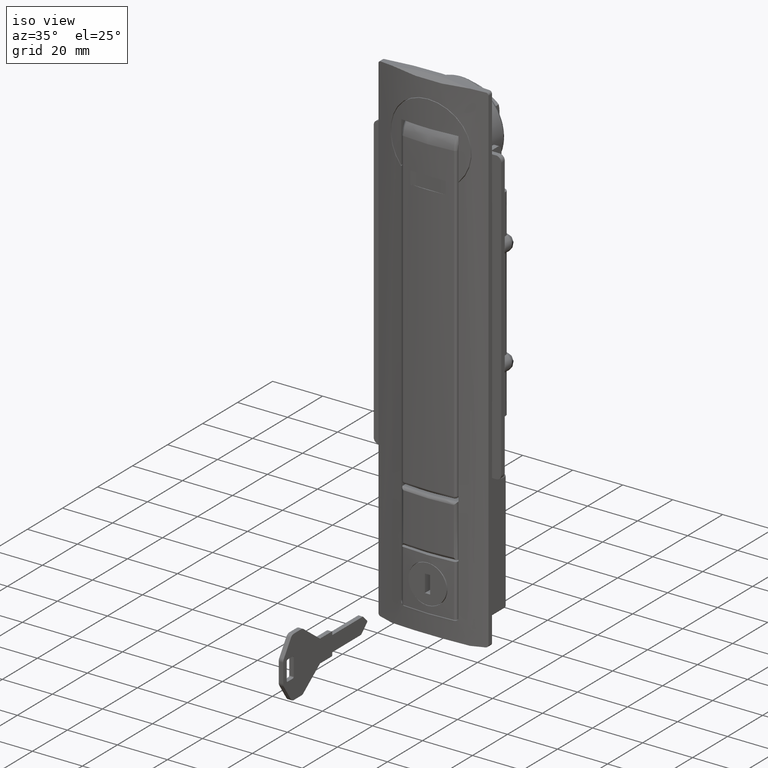
[diagram: clean part render]
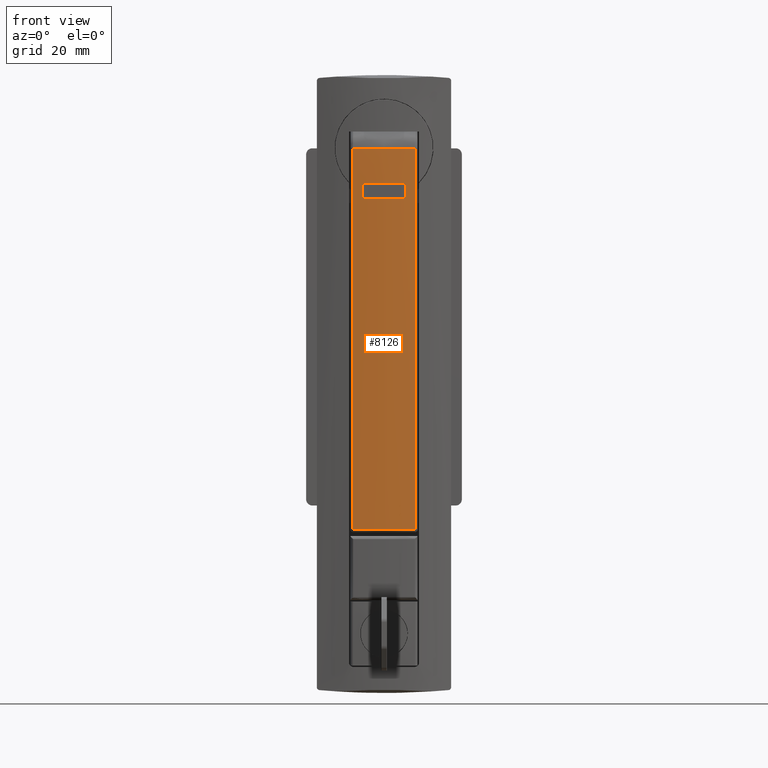
[diagram: tour spotlight — one face highlighted and labeled with its STEP entity id]
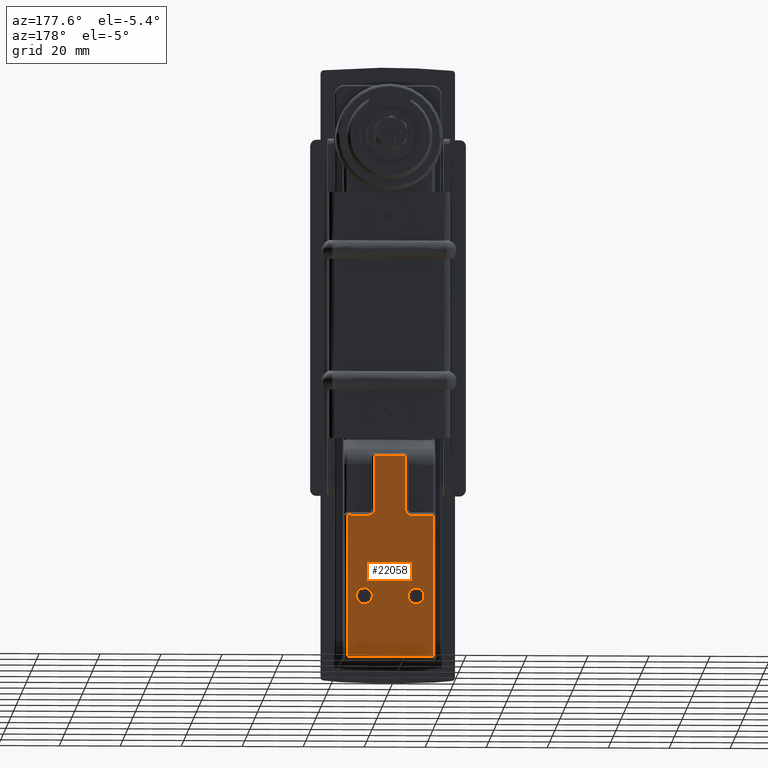
[diagram: tour spotlight — one face highlighted and labeled with its STEP entity id]
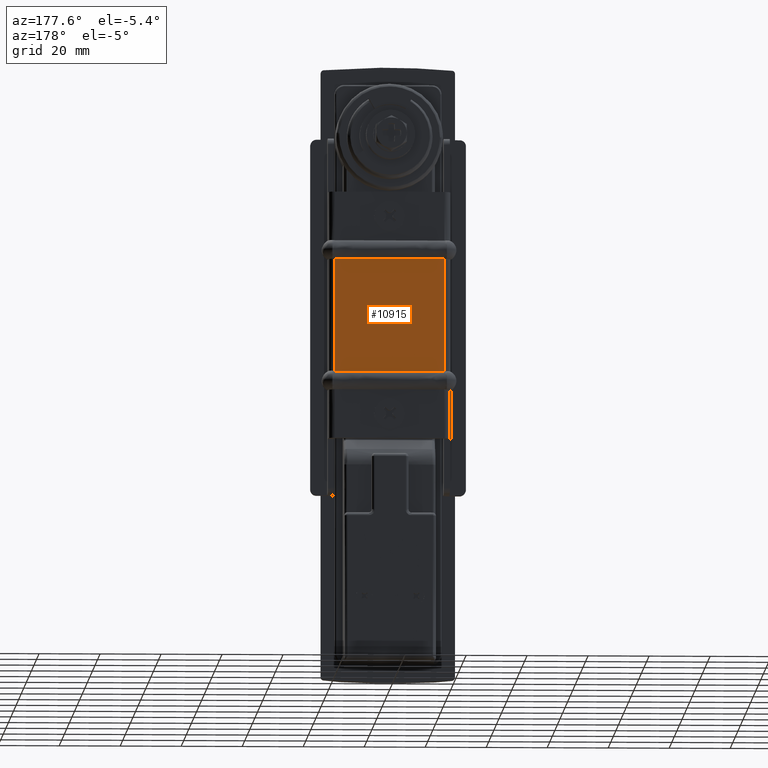
[diagram: tour spotlight — one face highlighted and labeled with its STEP entity id]
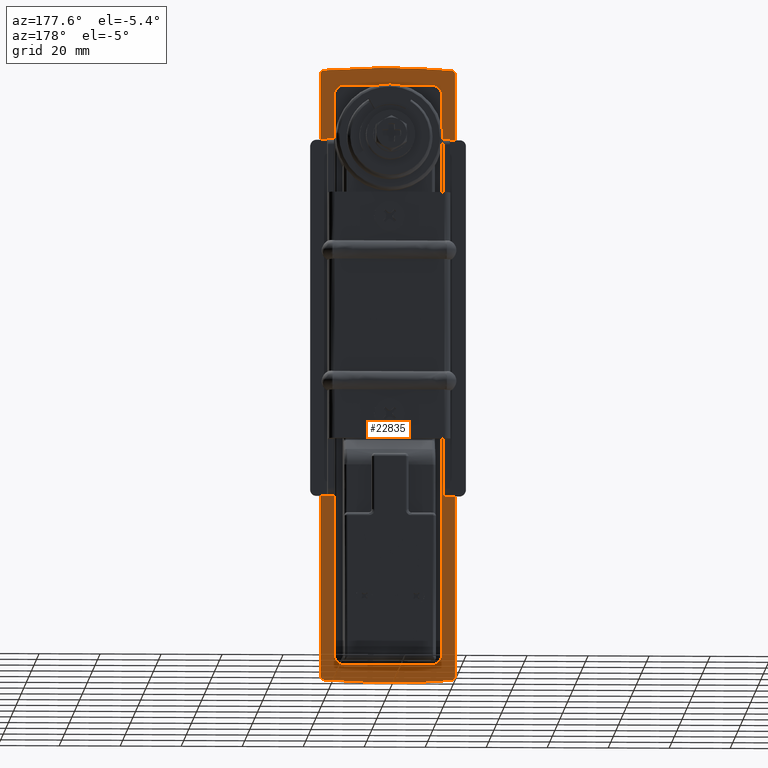
[diagram: tour spotlight — one face highlighted and labeled with its STEP entity id]
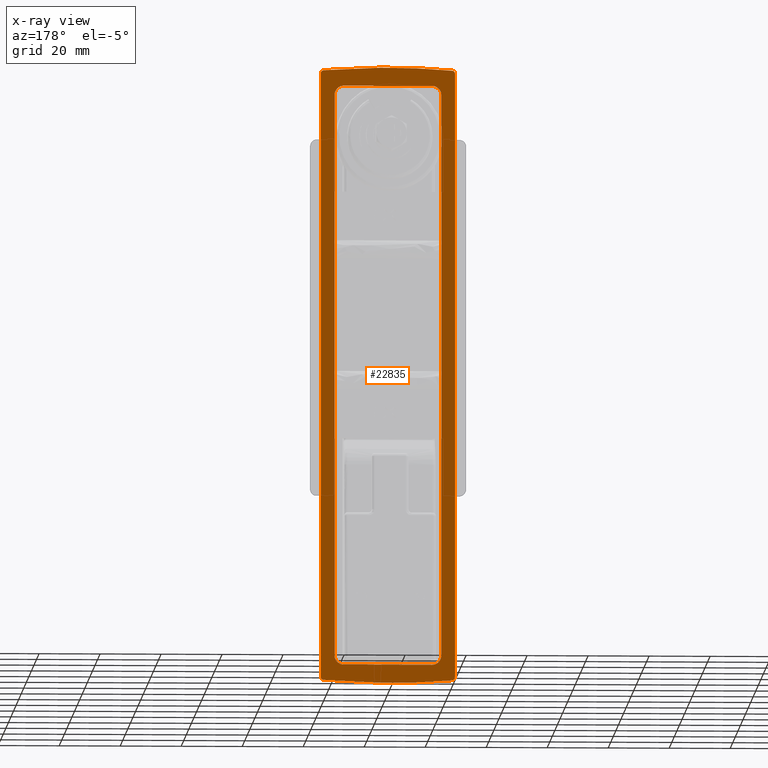
[diagram: x-ray of the same camera — body ghosted, this tour face saturated]
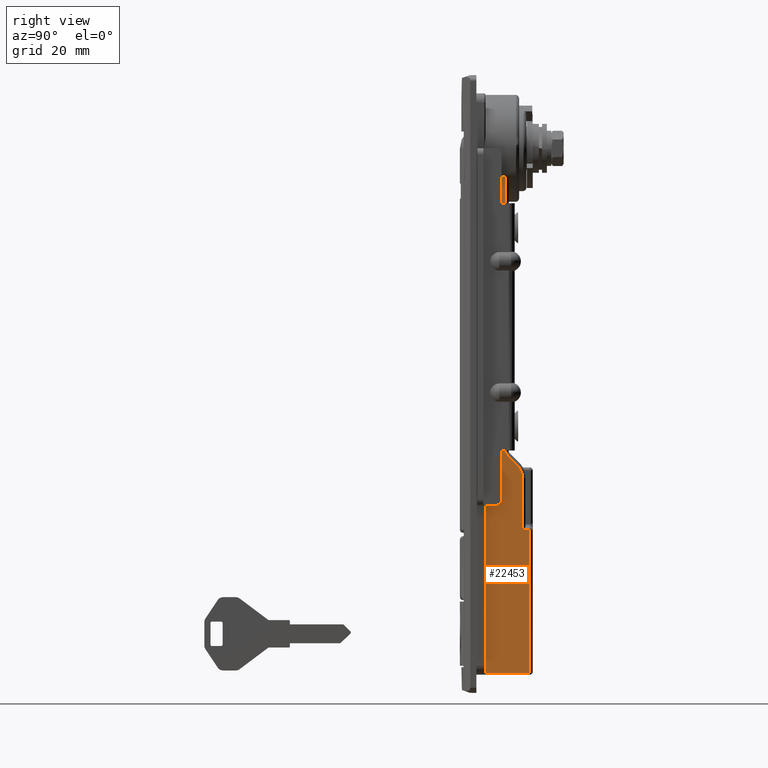
[diagram: tour spotlight — one face highlighted and labeled with its STEP entity id]
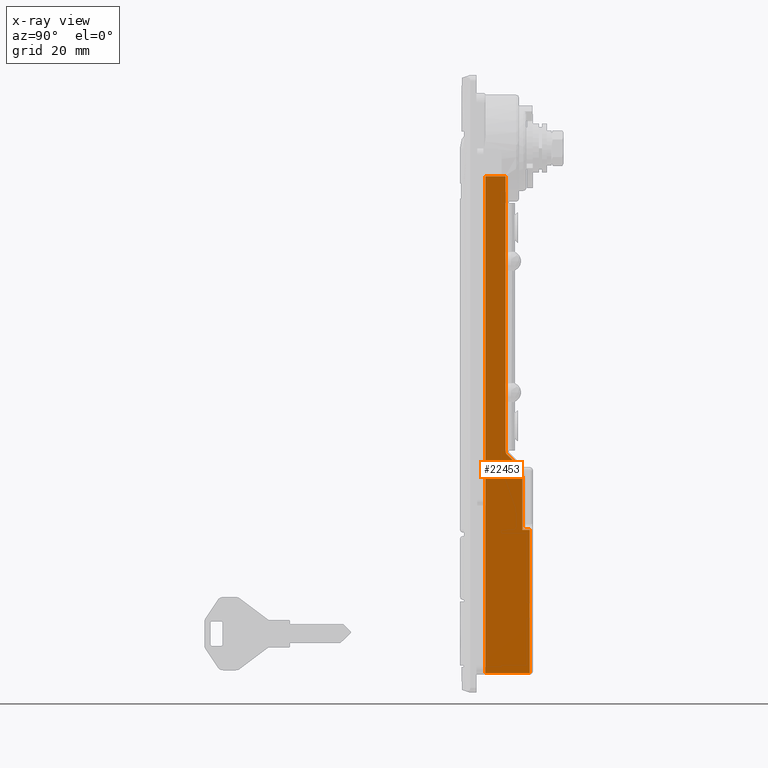
[diagram: x-ray of the same camera — body ghosted, this tour face saturated]
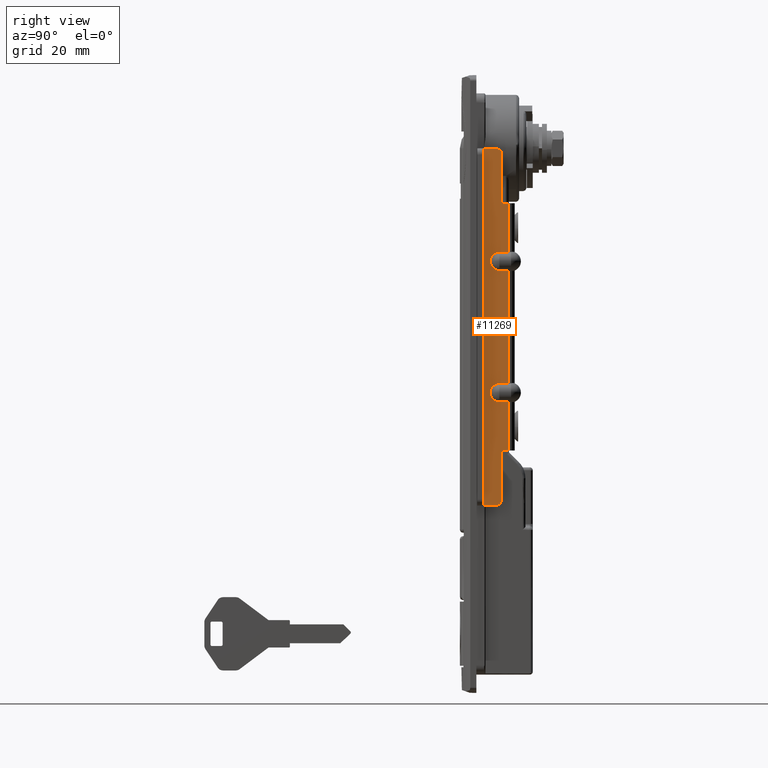
[diagram: tour spotlight — one face highlighted and labeled with its STEP entity id]
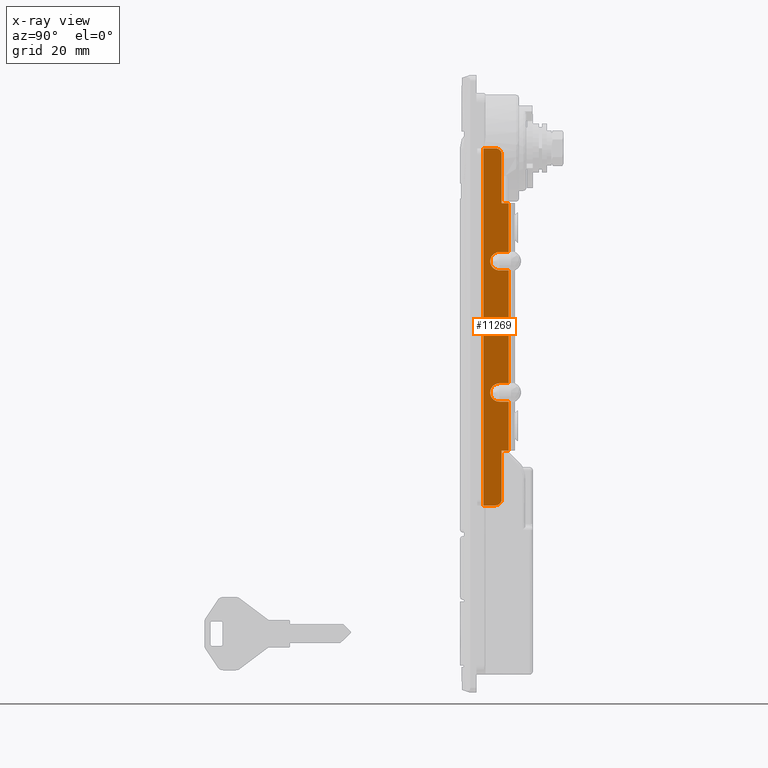
[diagram: x-ray of the same camera — body ghosted, this tour face saturated]
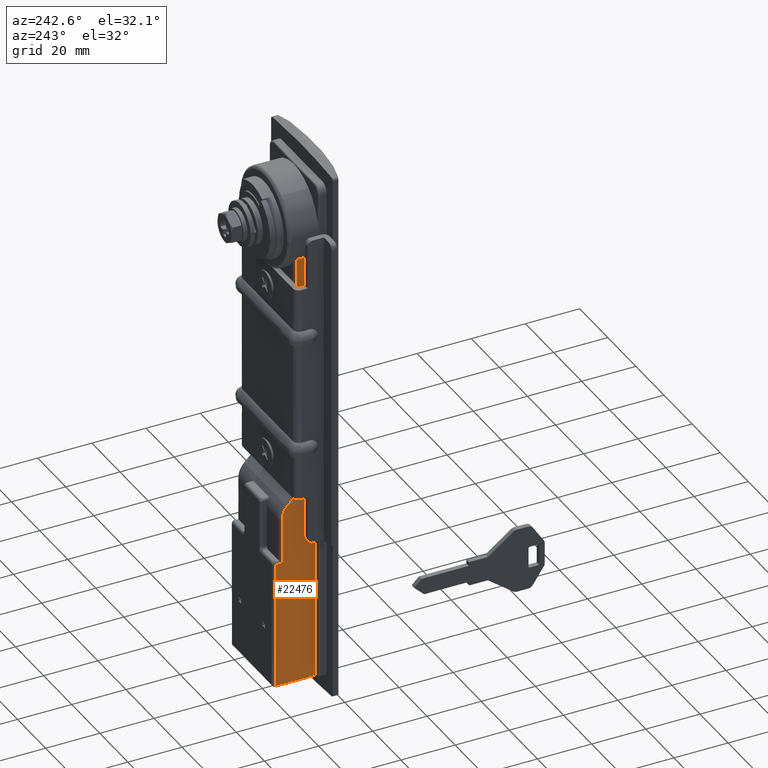
[diagram: tour spotlight — one face highlighted and labeled with its STEP entity id]
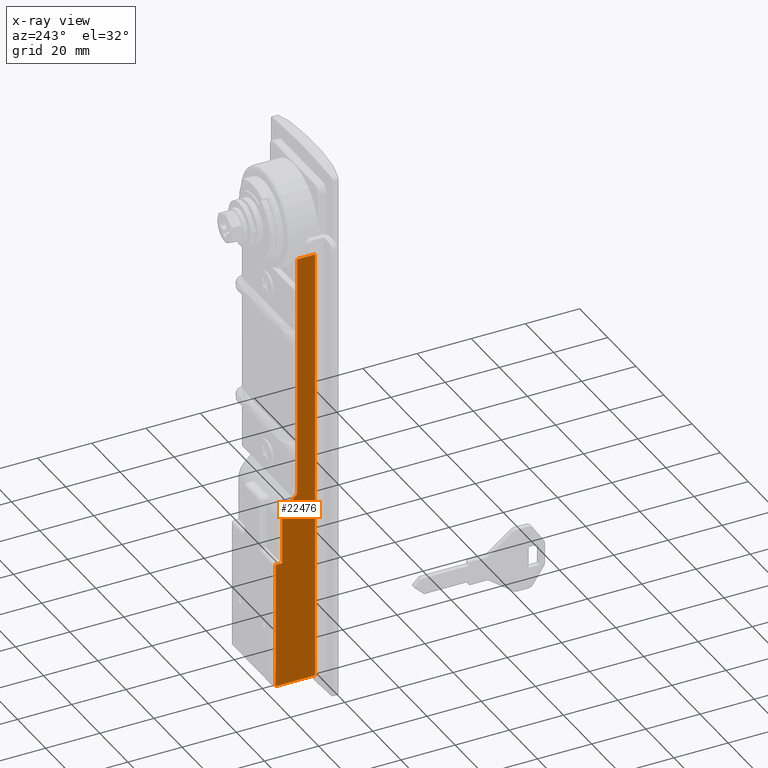
[diagram: x-ray of the same camera — body ghosted, this tour face saturated]
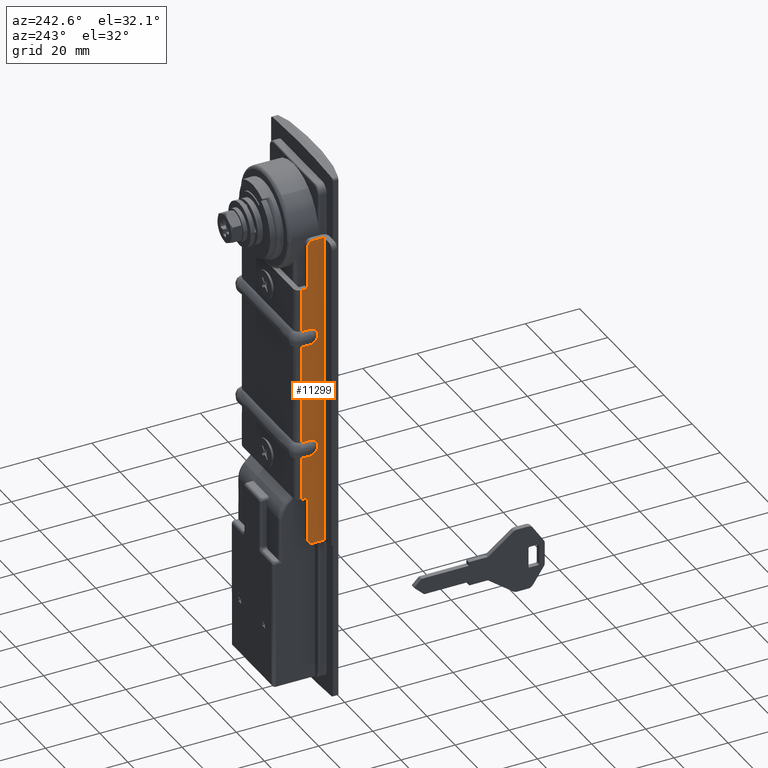
[diagram: tour spotlight — one face highlighted and labeled with its STEP entity id]
A machine part: a face-by-face anatomy tour. The part has 501 B-rep faces; the first image is the clean iso view, then the 8 largest visible faces are spotlighted one at a time (largest first), each with its STEP entity span.

Face 1 — front view, entity #8126. In plain terms, the highlighted face is a freeform B-spline surface patch.
Definition (entity closure, byte-faithful):
#5953=CARTESIAN_POINT('',(0.300000000000000,7.151922768225011,-11.500000000000000));
#5954=VERTEX_POINT('',#5953);
#5955=CARTESIAN_POINT('',(0.300000000000000,7.151922768225011,-16.500000000000000));
#5956=VERTEX_POINT('',#5955);
#5957=CARTESIAN_POINT('',(0.300000000000000,7.151922768225011,-11.500000000000000));
#5958=CARTESIAN_POINT('',(0.300000000000000,7.151922768225011,-16.500000000000000));
#5959=QUASI_UNIFORM_CURVE('',1,(#5957,#5958),.UNSPECIFIED.,.F.,.U.);
#5960=EDGE_CURVE('',#5954,#5956,#5959,.T.);
#5962=CARTESIAN_POINT('',(0.299999999999994,-7.151922768225011,-16.500000000000650));
#5963=VERTEX_POINT('',#5962);
#5969=CARTESIAN_POINT('',(0.300000000000000,-7.151922768225011,-11.500000000000000));
#5970=VERTEX_POINT('',#5969);
#5971=CARTESIAN_POINT('',(0.299999999999994,-7.151922768225011,-16.500000000000650));
#5972=CARTESIAN_POINT('',(0.300000000000000,-7.151922768225011,-11.500000000000000));
#5973=QUASI_UNIFORM_CURVE('',1,(#5971,#5972),.UNSPECIFIED.,.F.,.U.);
#5974=EDGE_CURVE('',#5963,#5970,#5973,.T.);
#5989=CARTESIAN_POINT('',(0.299999999999981,-7.151922768225015,-16.500000000000650));
#5990=CARTESIAN_POINT('',(-0.301057570859270,-4.250073E-014,-16.500000000000650));
#5991=CARTESIAN_POINT('',(0.300000000000000,7.151922768225011,-16.500000000000000));
#5999=(BOUNDED_CURVE()B_SPLINE_CURVE(2,(#5989,#5990,#5991),.UNSPECIFIED.,.F.,.U.)CURVE()GEOMETRIC_REPRESENTATION_ITEM()QUASI_UNIFORM_CURVE()RATIONAL_B_SPLINE_CURVE((1.0,0.996487119487292,1.0))REPRESENTATION_ITEM(''));
#6000=EDGE_CURVE('',#5963,#5956,#5999,.T.);
#6012=CARTESIAN_POINT('',(0.300000000000000,7.151922768225011,-11.500000000000000));
#6013=CARTESIAN_POINT('',(-0.301057570859270,2.341877E-014,-11.500000000001622));
#6014=CARTESIAN_POINT('',(0.300000000000000,-7.151922768225011,-11.500000000000000));
#6022=(BOUNDED_CURVE()B_SPLINE_CURVE(2,(#6012,#6013,#6014),.UNSPECIFIED.,.F.,.U.)CURVE()GEOMETRIC_REPRESENTATION_ITEM()QUASI_UNIFORM_CURVE()RATIONAL_B_SPLINE_CURVE((1.0,0.996487119487292,1.0))REPRESENTATION_ITEM(''));
#6023=EDGE_CURVE('',#5954,#5970,#6022,.T.);
#6469=CARTESIAN_POINT('',(0.601554892086870,-10.118483412322259,-124.912350356433610));
#6470=VERTEX_POINT('',#6469);
#6527=CARTESIAN_POINT('',(0.601554892086863,10.118483412322259,-124.912350356433610));
#6528=VERTEX_POINT('',#6527);
#6705=CARTESIAN_POINT('',(0.601554892086868,-10.118483412322281,0.044474718545276));
#6706=VERTEX_POINT('',#6705);
#6720=CARTESIAN_POINT('',(0.601554892086870,-10.118483412322259,-124.912350356433610));
#6721=CARTESIAN_POINT('',(0.601554892086868,-10.118483412322281,0.044474718545276));
#6722=QUASI_UNIFORM_CURVE('',1,(#6720,#6721),.UNSPECIFIED.,.F.,.U.);
#6723=EDGE_CURVE('',#6470,#6706,#6722,.T.);
#6755=CARTESIAN_POINT('',(0.601554892086811,10.118483412322320,-124.912350356433390));
#6756=CARTESIAN_POINT('',(-0.605822276563667,-6.938894E-014,-124.976849776038420));
#6757=CARTESIAN_POINT('',(0.601554892086839,-10.118483412322499,-124.912350356433390));
#6765=(BOUNDED_CURVE()B_SPLINE_CURVE(2,(#6755,#6756,#6757),.UNSPECIFIED.,.F.,.U.)CURVE()GEOMETRIC_REPRESENTATION_ITEM()QUASI_UNIFORM_CURVE()RATIONAL_B_SPLINE_CURVE((1.0,0.992956031757922,1.0))REPRESENTATION_ITEM(''));
#6766=EDGE_CURVE('',#6528,#6470,#6765,.T.);
#6799=CARTESIAN_POINT('',(0.601554892086878,10.118483412322281,0.044474718545278));
#6800=VERTEX_POINT('',#6799);
#6822=CARTESIAN_POINT('',(0.601554892086878,10.118483412322281,0.044474718545278));
#6823=CARTESIAN_POINT('',(0.601554892086863,10.118483412322259,-124.912350356433610));
#6824=QUASI_UNIFORM_CURVE('',1,(#6822,#6823),.UNSPECIFIED.,.F.,.U.);
#6825=EDGE_CURVE('',#6800,#6528,#6824,.T.);
#7882=CARTESIAN_POINT('',(0.601554892086859,-10.118483412322281,0.044474718545273));
#7883=CARTESIAN_POINT('',(0.401107361287307,-8.438623076961390,0.022766050458153));
#7884=CARTESIAN_POINT('',(0.250849099143142,-6.755455098727293,0.012968705069569));
#7885=CARTESIAN_POINT('',(0.050295780429653,-3.382611765777745,0.001573731742860));
#7886=CARTESIAN_POINT('',(4.214705E-009,-1.692936333584892,9.335053E-009));
#7887=CARTESIAN_POINT('',(4.214705E-009,1.692936333584892,9.335053E-009));
#7888=CARTESIAN_POINT('',(0.050295780429597,3.382611765776431,0.001573731742861));
#7889=CARTESIAN_POINT('',(0.250849099143086,6.755455098726634,0.012968705069564));
#7890=CARTESIAN_POINT('',(0.401107361287220,8.438623076960734,0.022766050458144));
#7891=CARTESIAN_POINT('',(0.601554892086878,10.118483412322281,0.044474718545278));
#7892=B_SPLINE_CURVE_WITH_KNOTS('',3,(#7882,#7883,#7884,#7885,#7886,#7887,#7888,#7889,#7890,#7891),.UNSPECIFIED.,.F.,.U.,(4,2,2,2,4),(0.0,0.250000000000000,0.500000000000000,0.750000000000000,1.0),.UNSPECIFIED.);
#7893=EDGE_CURVE('',#6706,#6800,#7892,.T.);
#8100=CARTESIAN_POINT('',(0.727025011980216,11.119681019005458,3.169198738554383));
#8101=CARTESIAN_POINT('',(0.727025011980216,11.119681019005458,-128.147328202328080));
#8102=CARTESIAN_POINT('',(-0.733457619372783,-0.001448185131213,3.169198738554382));
#8103=CARTESIAN_POINT('',(-0.733457619372783,-0.001448185131213,-128.147328202328050));
#8104=CARTESIAN_POINT('',(0.727398976263888,-11.122528272000928,3.169198738554382));
#8105=CARTESIAN_POINT('',(0.727398976263888,-11.122528272000928,-128.147328202328050));
#8113=(BOUNDED_SURFACE()B_SPLINE_SURFACE(1,2,((#8100,#8102,#8104),(#8101,#8103,#8105)),.UNSPECIFIED.,.F.,.F.,.U.)B_SPLINE_SURFACE_WITH_KNOTS((2,2),(3,3),(0.0,131.316526940882510),(0.0,22.337302046833909),.UNSPECIFIED.)GEOMETRIC_REPRESENTATION_ITEM()RATIONAL_B_SPLINE_SURFACE(((0.998260993717269,0.988288914431334,0.995294874289880),(0.998260993717269,0.988288914431334,0.995294874289880)))REPRESENTATION_ITEM('')SURFACE());
#8114=ORIENTED_EDGE('',*,*,#7893,.T.);
#8115=ORIENTED_EDGE('',*,*,#6825,.T.);
#8116=ORIENTED_EDGE('',*,*,#6766,.T.);
#8117=ORIENTED_EDGE('',*,*,#6723,.T.);
#8118=EDGE_LOOP('',(#8114,#8115,#8116,#8117));
#8119=FACE_OUTER_BOUND('',#8118,.T.);
#8120=ORIENTED_EDGE('',*,*,#5960,.F.);
#8121=ORIENTED_EDGE('',*,*,#6023,.T.);
#8122=ORIENTED_EDGE('',*,*,#5974,.F.);
#8123=ORIENTED_EDGE('',*,*,#6000,.T.);
#8124=EDGE_LOOP('',(#8120,#8121,#8122,#8123));
#8125=FACE_BOUND('',#8124,.T.);
#8126=ADVANCED_FACE('',(#8119,#8125),#8113,.T.);

Face 2 — auxiliary view, entity #22058. In plain terms, the highlighted face is a freeform B-spline surface patch.
Definition (entity closure, byte-faithful):
#14814=CARTESIAN_POINT('',(23.899999999999999,-11.091754863601601,-151.191930645799600));
#14815=VERTEX_POINT('',#14814);
#14821=CARTESIAN_POINT('',(23.899999999999999,-8.500000000000000,-154.110000000000010));
#14822=VERTEX_POINT('',#14821);
#14823=CARTESIAN_POINT('',(23.899999999999995,-11.091754863601606,-151.191930645799570));
#14824=CARTESIAN_POINT('',(23.900000000000009,-11.110000000000001,-151.345425045943810));
#14825=CARTESIAN_POINT('',(23.899999999999999,-11.109999999999999,-151.500000000000000));
#14826=CARTESIAN_POINT('',(23.899999999999991,-11.109999999999999,-154.109999999999930));
#14827=CARTESIAN_POINT('',(23.899999999999999,-8.500000000000000,-154.110000000000010));
#14835=(BOUNDED_CURVE()B_SPLINE_CURVE(2,(#14823,#14824,#14825,#14826,#14827),.UNSPECIFIED.,.F.,.U.)B_SPLINE_CURVE_WITH_KNOTS((3,2,3),(0.229562473287907,0.250000000000000,0.500000000000000),.UNSPECIFIED.)CURVE()GEOMETRIC_REPRESENTATION_ITEM()RATIONAL_B_SPLINE_CURVE((0.956026753741512,0.976055948066837,1.0,0.707106781186548,1.0))REPRESENTATION_ITEM(''));
#14836=EDGE_CURVE('',#14815,#14822,#14835,.T.);
#14838=CARTESIAN_POINT('',(23.899999999999999,-5.894868176156844,-151.659336688805890));
#14839=VERTEX_POINT('',#14838);
#14840=CARTESIAN_POINT('',(23.899999999999999,-8.500000000000000,-154.110000000000010));
#14841=CARTESIAN_POINT('',(23.899999999999991,-6.044757166546812,-154.109999999999990));
#14842=CARTESIAN_POINT('',(23.899999999999995,-5.894868176156844,-151.659336688805950));
#14850=(BOUNDED_CURVE()B_SPLINE_CURVE(2,(#14840,#14841,#14842),.UNSPECIFIED.,.F.,.U.)B_SPLINE_CURVE_WITH_KNOTS((3,3),(0.500000000000000,0.739332962159851),.UNSPECIFIED.)CURVE()GEOMETRIC_REPRESENTATION_ITEM()RATIONAL_B_SPLINE_CURVE((1.0,0.719603993379373,0.976072041497208))REPRESENTATION_ITEM(''));
#14851=EDGE_CURVE('',#14822,#14839,#14850,.T.);
#14925=CARTESIAN_POINT('',(23.899999999999999,-8.500000000000000,-148.889999999999990));
#14926=VERTEX_POINT('',#14925);
#14927=CARTESIAN_POINT('',(23.900000000000002,-5.894868176156844,-151.659336688805920));
#14928=CARTESIAN_POINT('',(23.900000000000002,-5.890000000000002,-151.579742712830980));
#14929=CARTESIAN_POINT('',(23.899999999999999,-5.890000000000002,-151.500000000000000));
#14930=CARTESIAN_POINT('',(23.899999999999991,-5.890000000000002,-148.890000000000040));
#14931=CARTESIAN_POINT('',(23.899999999999999,-8.500000000000000,-148.889999999999990));
#14939=(BOUNDED_CURVE()B_SPLINE_CURVE(2,(#14927,#14928,#14929,#14930,#14931),.UNSPECIFIED.,.F.,.U.)B_SPLINE_CURVE_WITH_KNOTS((3,2,3),(0.739332962159849,0.750000000000000,1.0),.UNSPECIFIED.)CURVE()GEOMETRIC_REPRESENTATION_ITEM()RATIONAL_B_SPLINE_CURVE((0.976072041497205,0.987502787807174,1.0,0.707106781186548,1.0))REPRESENTATION_ITEM(''));
#14940=EDGE_CURVE('',#14839,#14926,#14939,.T.);
#14942=CARTESIAN_POINT('',(23.899999999999999,-8.500000000000000,-148.889999999999990));
#14943=CARTESIAN_POINT('',(23.899999999999988,-10.818135509587320,-148.889999999999960));
#14944=CARTESIAN_POINT('',(23.900000000000002,-11.091754863601597,-151.191930645799630));
#14952=(BOUNDED_CURVE()B_SPLINE_CURVE(2,(#14942,#14943,#14944),.UNSPECIFIED.,.F.,.U.)B_SPLINE_CURVE_WITH_KNOTS((3,3),(0.0,0.229562473287907),.UNSPECIFIED.)CURVE()GEOMETRIC_REPRESENTATION_ITEM()RATIONAL_B_SPLINE_CURVE((1.0,0.731050833119711,0.956026753741512))REPRESENTATION_ITEM(''));
#14953=EDGE_CURVE('',#14926,#14815,#14952,.T.);
#15186=CARTESIAN_POINT('',(23.899999999999999,5.908245136398397,-151.191930645799600));
#15187=VERTEX_POINT('',#15186);
#15193=CARTESIAN_POINT('',(23.899999999999999,8.500000000000000,-154.110000000000010));
#15194=VERTEX_POINT('',#15193);
#15195=CARTESIAN_POINT('',(23.899999999999995,5.908245136398397,-151.191930645799600));
#15196=CARTESIAN_POINT('',(23.900000000000006,5.890000000000002,-151.345425045943900));
#15197=CARTESIAN_POINT('',(23.899999999999999,5.890000000000002,-151.500000000000000));
#15198=CARTESIAN_POINT('',(23.899999999999991,5.890000000000002,-154.109999999999930));
#15199=CARTESIAN_POINT('',(23.899999999999999,8.500000000000000,-154.110000000000010));
#15207=(BOUNDED_CURVE()B_SPLINE_CURVE(2,(#15195,#15196,#15197,#15198,#15199),.UNSPECIFIED.,.F.,.U.)B_SPLINE_CURVE_WITH_KNOTS((3,2,3),(0.229562473287909,0.250000000000000,0.500000000000000),.UNSPECIFIED.)CURVE()GEOMETRIC_REPRESENTATION_ITEM()RATIONAL_B_SPLINE_CURVE((0.956026753741516,0.976055948066839,1.0,0.707106781186548,1.0))REPRESENTATION_ITEM(''));
#15208=EDGE_CURVE('',#15187,#15194,#15207,.T.);
#15210=CARTESIAN_POINT('',(23.899999999999999,11.105131823843161,-151.659336688805890));
#15211=VERTEX_POINT('',#15210);
#15212=CARTESIAN_POINT('',(23.899999999999999,8.500000000000000,-154.110000000000010));
#15213=CARTESIAN_POINT('',(23.899999999999991,10.955242833453191,-154.109999999999990));
#15214=CARTESIAN_POINT('',(23.899999999999995,11.105131823843156,-151.659336688805950));
#15222=(BOUNDED_CURVE()B_SPLINE_CURVE(2,(#15212,#15213,#15214),.UNSPECIFIED.,.F.,.U.)B_SPLINE_CURVE_WITH_KNOTS((3,3),(0.500000000000000,0.739332962159851),.UNSPECIFIED.)CURVE()GEOMETRIC_REPRESENTATION_ITEM()RATIONAL_B_SPLINE_CURVE((1.0,0.719603993379373,0.976072041497208))REPRESENTATION_ITEM(''));
#15223=EDGE_CURVE('',#15194,#15211,#15222,.T.);
#15297=CARTESIAN_POINT('',(23.899999999999999,8.500000000000000,-148.889999999999990));
#15298=VERTEX_POINT('',#15297);
#15299=CARTESIAN_POINT('',(23.900000000000002,11.105131823843154,-151.659336688805920));
#15300=CARTESIAN_POINT('',(23.900000000000002,11.110000000000001,-151.579742712830980));
#15301=CARTESIAN_POINT('',(23.899999999999999,11.109999999999999,-151.500000000000000));
#15302=CARTESIAN_POINT('',(23.899999999999991,11.109999999999999,-148.890000000000040));
#15303=CARTESIAN_POINT('',(23.899999999999999,8.500000000000000,-148.889999999999990));
#15311=(BOUNDED_CURVE()B_SPLINE_CURVE(2,(#15299,#15300,#15301,#15302,#15303),.UNSPECIFIED.,.F.,.U.)B_SPLINE_CURVE_WITH_KNOTS((3,2,3),(0.739332962159849,0.750000000000000,1.0),.UNSPECIFIED.)CURVE()GEOMETRIC_REPRESENTATION_ITEM()RATIONAL_B_SPLINE_CURVE((0.976072041497205,0.987502787807174,1.0,0.707106781186548,1.0))REPRESENTATION_ITEM(''));
#15312=EDGE_CURVE('',#15211,#15298,#15311,.T.);
#15314=CARTESIAN_POINT('',(23.899999999999999,8.500000000000000,-148.889999999999990));
#15315=CARTESIAN_POINT('',(23.899999999999999,6.181864490412654,-148.890000000000040));
#15316=CARTESIAN_POINT('',(23.900000000000002,5.908245136398397,-151.191930645799600));
#15324=(BOUNDED_CURVE()B_SPLINE_CURVE(2,(#15314,#15315,#15316),.UNSPECIFIED.,.F.,.U.)B_SPLINE_CURVE_WITH_KNOTS((3,3),(0.0,0.229562473287909),.UNSPECIFIED.)CURVE()GEOMETRIC_REPRESENTATION_ITEM()RATIONAL_B_SPLINE_CURVE((1.0,0.731050833119708,0.956026753741516))REPRESENTATION_ITEM(''));
#15325=EDGE_CURVE('',#15298,#15187,#15324,.T.);
#17956=CARTESIAN_POINT('',(23.899999999999999,-14.0,-171.400000000000010));
#17957=VERTEX_POINT('',#17956);
#18003=CARTESIAN_POINT('',(23.899999999999999,14.0,-171.400000000000010));
#18004=VERTEX_POINT('',#18003);
#18018=CARTESIAN_POINT('',(23.899999999999999,-14.0,-171.400000000000010));
#18019=CARTESIAN_POINT('',(23.899999999999999,14.0,-171.400000000000010));
#18020=QUASI_UNIFORM_CURVE('',1,(#18018,#18019),.UNSPECIFIED.,.F.,.U.);
#18021=EDGE_CURVE('',#17957,#18004,#18020,.T.);
#18046=CARTESIAN_POINT('',(23.899999999999999,-14.0,-125.0));
#18047=VERTEX_POINT('',#18046);
#18069=CARTESIAN_POINT('',(23.899999999999999,-14.0,-125.0));
#18070=CARTESIAN_POINT('',(23.899999999999999,-14.0,-171.400000000000010));
#18071=QUASI_UNIFORM_CURVE('',1,(#18069,#18070),.UNSPECIFIED.,.F.,.U.);
#18072=EDGE_CURVE('',#18047,#17957,#18071,.T.);
#18219=CARTESIAN_POINT('',(23.899999999999999,14.0,-125.0));
#18220=VERTEX_POINT('',#18219);
#18234=CARTESIAN_POINT('',(23.899999999999999,14.0,-171.400000000000010));
#18235=CARTESIAN_POINT('',(23.899999999999999,14.0,-125.0));
#18236=QUASI_UNIFORM_CURVE('',1,(#18234,#18235),.UNSPECIFIED.,.F.,.U.);
#18237=EDGE_CURVE('',#18004,#18220,#18236,.T.);
#18262=CARTESIAN_POINT('',(23.899999999999999,-7.050000000000000,-125.0));
#18263=VERTEX_POINT('',#18262);
#18285=CARTESIAN_POINT('',(23.899999999999999,-7.050000000000000,-125.0));
#18286=CARTESIAN_POINT('',(23.899999999999999,-14.0,-125.0));
#18287=QUASI_UNIFORM_CURVE('',1,(#18285,#18286),.UNSPECIFIED.,.F.,.U.);
#18288=EDGE_CURVE('',#18263,#18047,#18287,.T.);
#18366=CARTESIAN_POINT('',(23.899999999999999,-5.050000000000000,-123.0));
#18367=VERTEX_POINT('',#18366);
#18397=CARTESIAN_POINT('',(23.899999999999999,-5.050000000000000,-123.0));
#18398=CARTESIAN_POINT('',(23.899999999999991,-5.050000000000000,-125.0));
#18399=CARTESIAN_POINT('',(23.899999999999999,-7.050000000000000,-125.0));
#18407=(BOUNDED_CURVE()B_SPLINE_CURVE(2,(#18397,#18398,#18399),.UNSPECIFIED.,.F.,.U.)CURVE()GEOMETRIC_REPRESENTATION_ITEM()QUASI_UNIFORM_CURVE()RATIONAL_B_SPLINE_CURVE((1.0,0.707106781186548,1.0))REPRESENTATION_ITEM(''));
#18408=EDGE_CURVE('',#18367,#18263,#18407,.T.);
#18429=CARTESIAN_POINT('',(23.899999999999999,7.050000000000000,-125.0));
#18430=VERTEX_POINT('',#18429);
#18444=CARTESIAN_POINT('',(23.899999999999999,14.0,-125.0));
#18445=CARTESIAN_POINT('',(23.899999999999999,7.050000000000000,-125.0));
#18446=QUASI_UNIFORM_CURVE('',1,(#18444,#18445),.UNSPECIFIED.,.F.,.U.);
#18447=EDGE_CURVE('',#18220,#18430,#18446,.T.);
#18472=CARTESIAN_POINT('',(23.899999999999999,-5.050000000000000,-105.500000000000000));
#18473=VERTEX_POINT('',#18472);
#18495=CARTESIAN_POINT('',(23.899999999999999,-5.050000000000000,-105.500000000000000));
#18496=CARTESIAN_POINT('',(23.899999999999999,-5.050000000000000,-123.0));
#18497=QUASI_UNIFORM_CURVE('',1,(#18495,#18496),.UNSPECIFIED.,.F.,.U.);
#18498=EDGE_CURVE('',#18473,#18367,#18497,.T.);
#18522=CARTESIAN_POINT('',(23.899999999999999,5.050000000000000,-123.0));
#18523=VERTEX_POINT('',#18522);
#18537=CARTESIAN_POINT('',(23.899999999999999,7.050000000000000,-125.0));
#18538=CARTESIAN_POINT('',(23.899999999999991,5.050000000000000,-125.0));
#18539=CARTESIAN_POINT('',(23.899999999999999,5.050000000000000,-123.0));
#18547=(BOUNDED_CURVE()B_SPLINE_CURVE(2,(#18537,#18538,#18539),.UNSPECIFIED.,.F.,.U.)CURVE()GEOMETRIC_REPRESENTATION_ITEM()QUASI_UNIFORM_CURVE()RATIONAL_B_SPLINE_CURVE((1.0,0.707106781186548,1.0))REPRESENTATION_ITEM(''));
#18548=EDGE_CURVE('',#18430,#18523,#18547,.T.);
#18639=CARTESIAN_POINT('',(23.899999999999999,5.050000000000000,-105.500000000000000));
#18640=VERTEX_POINT('',#18639);
#18654=CARTESIAN_POINT('',(23.899999999999999,5.050000000000000,-123.0));
#18655=CARTESIAN_POINT('',(23.899999999999999,5.050000000000000,-105.500000000000000));
#18656=QUASI_UNIFORM_CURVE('',1,(#18654,#18655),.UNSPECIFIED.,.F.,.U.);
#18657=EDGE_CURVE('',#18523,#18640,#18656,.T.);
#18703=CARTESIAN_POINT('',(23.899999999999999,5.050000000000000,-105.500000000000000));
#18704=CARTESIAN_POINT('',(23.899999999999999,-5.050000000000000,-105.500000000000000));
#18705=QUASI_UNIFORM_CURVE('',1,(#18703,#18704),.UNSPECIFIED.,.F.,.U.);
#18706=EDGE_CURVE('',#18640,#18473,#18705,.T.);
#22029=CARTESIAN_POINT('',(23.899999999999999,-15.398599945730570,-174.691698686052600));
#22030=CARTESIAN_POINT('',(23.899999999999999,15.398600696749090,-174.691698686052600));
#22031=CARTESIAN_POINT('',(23.900000000000009,-15.398599945730570,-102.208293654452600));
#22032=CARTESIAN_POINT('',(23.900000000000009,15.398600696749090,-102.208293654452600));
#22033=B_SPLINE_SURFACE_WITH_KNOTS('',1,1,((#22029,#22031),(#22030,#22032)),.UNSPECIFIED.,.F.,.F.,.U.,(2,2),(2,2),(0.0,30.797200642479670),(0.0,72.483405031599943),.UNSPECIFIED.);
#22034=ORIENTED_EDGE('',*,*,#18237,.T.);
#22035=ORIENTED_EDGE('',*,*,#18447,.T.);
#22036=ORIENTED_EDGE('',*,*,#18548,.T.);
#22037=ORIENTED_EDGE('',*,*,#18657,.T.);
#22038=ORIENTED_EDGE('',*,*,#18706,.T.);
#22039=ORIENTED_EDGE('',*,*,#18498,.T.);
#22040=ORIENTED_EDGE('',*,*,#18408,.T.);
#22041=ORIENTED_EDGE('',*,*,#18288,.T.);
#22042=ORIENTED_EDGE('',*,*,#18072,.T.);
#22043=ORIENTED_EDGE('',*,*,#18021,.T.);
#22044=EDGE_LOOP('',(#22034,#22035,#22036,#22037,#22038,#22039,#22040,#22041,#22042,#22043));
#22045=FACE_OUTER_BOUND('',#22044,.T.);
#22046=ORIENTED_EDGE('',*,*,#15223,.F.);
#22047=ORIENTED_EDGE('',*,*,#15208,.F.);
#22048=ORIENTED_EDGE('',*,*,#15325,.F.);
#22049=ORIENTED_EDGE('',*,*,#15312,.F.);
#22050=EDGE_LOOP('',(#22046,#22047,#22048,#22049));
#22051=FACE_BOUND('',#22050,.T.);
#22052=ORIENTED_EDGE('',*,*,#14851,.F.);
#22053=ORIENTED_EDGE('',*,*,#14836,.F.);
#22054=ORIENTED_EDGE('',*,*,#14953,.F.);
#22055=ORIENTED_EDGE('',*,*,#14940,.F.);
#22056=EDGE_LOOP('',(#22052,#22053,#22054,#22055));
#22057=FACE_BOUND('',#22056,.T.);
#22058=ADVANCED_FACE('',(#22045,#22051,#22057),#22033,.T.);

Face 3 — auxiliary view, entity #10915. In plain terms, the highlighted face is a freeform B-spline surface patch.
Definition (entity closure, byte-faithful):
#10191=CARTESIAN_POINT('',(18.0,18.0,-77.000000002267100));
#10192=VERTEX_POINT('',#10191);
#10204=CARTESIAN_POINT('',(18.0,-18.0,-77.000000002267100));
#10205=VERTEX_POINT('',#10204);
#10206=CARTESIAN_POINT('',(18.0,18.0,-77.000000002267100));
#10207=CARTESIAN_POINT('',(18.0,-18.0,-77.000000002267100));
#10208=QUASI_UNIFORM_CURVE('',1,(#10206,#10207),.UNSPECIFIED.,.F.,.U.);
#10209=EDGE_CURVE('',#10192,#10205,#10208,.T.);
#10723=CARTESIAN_POINT('',(18.0,-18.0,-40.0));
#10724=VERTEX_POINT('',#10723);
#10725=CARTESIAN_POINT('',(18.0,18.0,-40.0));
#10726=VERTEX_POINT('',#10725);
#10727=CARTESIAN_POINT('',(18.0,-18.0,-40.0));
#10728=CARTESIAN_POINT('',(18.0,18.0,-40.0));
#10729=QUASI_UNIFORM_CURVE('',1,(#10727,#10728),.UNSPECIFIED.,.F.,.U.);
#10730=EDGE_CURVE('',#10724,#10726,#10729,.T.);
#10896=CARTESIAN_POINT('',(18.0,-19.798199930225010,-38.151850071599938));
#10897=CARTESIAN_POINT('',(18.0,-19.798199930225010,-78.848150923084503));
#10898=CARTESIAN_POINT('',(18.0,19.798200895820258,-38.151850071599938));
#10899=CARTESIAN_POINT('',(18.0,19.798200895820258,-78.848150923084503));
#10900=B_SPLINE_SURFACE_WITH_KNOTS('',1,1,((#10896,#10898),(#10897,#10899)),.UNSPECIFIED.,.F.,.F.,.U.,(2,2),(2,2),(0.0,40.696300851484573),(0.0,39.596400826045269),.UNSPECIFIED.);
#10901=ORIENTED_EDGE('',*,*,#10209,.F.);
#10902=CARTESIAN_POINT('',(18.0,18.0,-77.000000002267100));
#10903=CARTESIAN_POINT('',(18.0,18.0,-40.0));
#10904=QUASI_UNIFORM_CURVE('',1,(#10902,#10903),.UNSPECIFIED.,.F.,.U.);
#10905=EDGE_CURVE('',#10192,#10726,#10904,.T.);
#10906=ORIENTED_EDGE('',*,*,#10905,.T.);
#10907=ORIENTED_EDGE('',*,*,#10730,.F.);
#10908=CARTESIAN_POINT('',(18.0,-18.0,-40.0));
#10909=CARTESIAN_POINT('',(18.0,-18.0,-77.000000002267100));
#10910=QUASI_UNIFORM_CURVE('',1,(#10908,#10909),.UNSPECIFIED.,.F.,.U.);
#10911=EDGE_CURVE('',#10724,#10205,#10910,.T.);
#10912=ORIENTED_EDGE('',*,*,#10911,.T.);
#10913=EDGE_LOOP('',(#10901,#10906,#10907,#10912));
#10914=FACE_OUTER_BOUND('',#10913,.T.);
#10915=ADVANCED_FACE('',(#10914),#10900,.T.);

Face 4 — auxiliary view, entity #22835. An x-ray twin of the same camera follows (body ghosted, this face saturated) — the face is partly hidden behind the body. In plain terms, the highlighted face is a freeform B-spline surface patch.
Definition (entity closure, byte-faithful):
#20278=CARTESIAN_POINT('',(5.400000000000000,-21.086956521739200,-177.481436092780510));
#20279=VERTEX_POINT('',#20278);
#20285=CARTESIAN_POINT('',(5.399999999999920,-22.0,-176.485223985181510));
#20286=VERTEX_POINT('',#20285);
#20287=CARTESIAN_POINT('',(5.400000000000000,-22.0,-176.485223985181510));
#20288=CARTESIAN_POINT('',(5.400000000000001,-22.0,-177.401739124172620));
#20289=CARTESIAN_POINT('',(5.400000000000000,-21.086956521739200,-177.481436092780600));
#20297=(BOUNDED_CURVE()B_SPLINE_CURVE(2,(#20287,#20288,#20289),.UNSPECIFIED.,.F.,.U.)CURVE()GEOMETRIC_REPRESENTATION_ITEM()QUASI_UNIFORM_CURVE()RATIONAL_B_SPLINE_CURVE((1.0,0.737209780774510,1.0))REPRESENTATION_ITEM(''));
#20298=EDGE_CURVE('',#20286,#20279,#20297,.T.);
#20351=CARTESIAN_POINT('',(5.399999999999920,22.0,-176.485223985181510));
#20352=VERTEX_POINT('',#20351);
#20358=CARTESIAN_POINT('',(5.400000000000000,21.086956521739150,-177.481436092780510));
#20359=VERTEX_POINT('',#20358);
#20360=CARTESIAN_POINT('',(5.400000000000000,21.086956521739161,-177.481436092780600));
#20361=CARTESIAN_POINT('',(5.400000000000000,22.0,-177.401739124172620));
#20362=CARTESIAN_POINT('',(5.400000000000000,22.0,-176.485223985181510));
#20370=(BOUNDED_CURVE()B_SPLINE_CURVE(2,(#20360,#20361,#20362),.UNSPECIFIED.,.F.,.U.)CURVE()GEOMETRIC_REPRESENTATION_ITEM()QUASI_UNIFORM_CURVE()RATIONAL_B_SPLINE_CURVE((1.0,0.737209780774494,1.0))REPRESENTATION_ITEM(''));
#20371=EDGE_CURVE('',#20359,#20352,#20370,.T.);
#20426=CARTESIAN_POINT('',(5.400000000000000,21.086956521739150,23.081436092780699));
#20427=VERTEX_POINT('',#20426);
#20433=CARTESIAN_POINT('',(5.399999999999920,22.0,22.085223985181649));
#20434=VERTEX_POINT('',#20433);
#20435=CARTESIAN_POINT('',(5.399999999999920,22.0,22.085223985181649));
#20436=CARTESIAN_POINT('',(5.400000000000000,22.000000000000004,23.001739124172747));
#20437=CARTESIAN_POINT('',(5.400000000000000,21.086956521739150,23.081436092780692));
#20445=(BOUNDED_CURVE()B_SPLINE_CURVE(2,(#20435,#20436,#20437),.UNSPECIFIED.,.F.,.U.)CURVE()GEOMETRIC_REPRESENTATION_ITEM()QUASI_UNIFORM_CURVE()RATIONAL_B_SPLINE_CURVE((1.0,0.737209780774491,1.0))REPRESENTATION_ITEM(''));
#20446=EDGE_CURVE('',#20434,#20427,#20445,.T.);
#20499=CARTESIAN_POINT('',(5.399999999999920,-22.0,22.085223985181649));
#20500=VERTEX_POINT('',#20499);
#20506=CARTESIAN_POINT('',(5.400000000000000,-21.086956521739200,23.081436092780699));
#20507=VERTEX_POINT('',#20506);
#20508=CARTESIAN_POINT('',(5.400000000000000,-21.086956521739200,23.081436092780692));
#20509=CARTESIAN_POINT('',(5.400000000000000,-22.000000000000004,23.001739124172712));
#20510=CARTESIAN_POINT('',(5.399999999999920,-22.0,22.085223985181649));
#20518=(BOUNDED_CURVE()B_SPLINE_CURVE(2,(#20508,#20509,#20510),.UNSPECIFIED.,.F.,.U.)CURVE()GEOMETRIC_REPRESENTATION_ITEM()QUASI_UNIFORM_CURVE()RATIONAL_B_SPLINE_CURVE((1.0,0.737209780774508,1.0))REPRESENTATION_ITEM(''));
#20519=EDGE_CURVE('',#20507,#20500,#20518,.T.);
#20553=CARTESIAN_POINT('',(5.400000000000000,-21.086956521739172,-177.481436092780710));
#20554=CARTESIAN_POINT('',(5.400000000000001,-2.829107E-014,-179.322056558249410));
#20555=CARTESIAN_POINT('',(5.400000000000000,21.086956521739051,-177.481436092780710));
#20563=(BOUNDED_CURVE()B_SPLINE_CURVE(2,(#20553,#20554,#20555),.UNSPECIFIED.,.F.,.U.)CURVE()GEOMETRIC_REPRESENTATION_ITEM()QUASI_UNIFORM_CURVE()RATIONAL_B_SPLINE_CURVE((1.0,0.996212107599096,1.0))REPRESENTATION_ITEM(''));
#20564=EDGE_CURVE('',#20279,#20359,#20563,.T.);
#20616=CARTESIAN_POINT('',(5.400000000000000,-21.086956521739221,23.081436092780692));
#20617=CARTESIAN_POINT('',(5.400000000000000,-8.740231E-014,24.922056558249505));
#20618=CARTESIAN_POINT('',(5.400000000000000,21.086956521739111,23.081436092780692));
#20626=(BOUNDED_CURVE()B_SPLINE_CURVE(2,(#20616,#20617,#20618),.UNSPECIFIED.,.F.,.U.)CURVE()GEOMETRIC_REPRESENTATION_ITEM()QUASI_UNIFORM_CURVE()RATIONAL_B_SPLINE_CURVE((1.0,0.996212107599096,1.0))REPRESENTATION_ITEM(''));
#20627=EDGE_CURVE('',#20507,#20427,#20626,.T.);
#22536=CARTESIAN_POINT('',(5.400000000000000,14.500000000000000,18.0));
#22537=VERTEX_POINT('',#22536);
#22544=CARTESIAN_POINT('',(5.400000000000000,17.500000000000000,15.0));
#22545=VERTEX_POINT('',#22544);
#22551=CARTESIAN_POINT('',(5.400000000000000,17.500000000000000,15.0));
#22552=CARTESIAN_POINT('',(5.400000000000000,17.499999999999996,18.000000000000007));
#22553=CARTESIAN_POINT('',(5.400000000000000,14.500000000000000,18.0));
#22561=(BOUNDED_CURVE()B_SPLINE_CURVE(2,(#22551,#22552,#22553),.UNSPECIFIED.,.F.,.U.)CURVE()GEOMETRIC_REPRESENTATION_ITEM()QUASI_UNIFORM_CURVE()RATIONAL_B_SPLINE_CURVE((1.0,0.707106781186548,1.0))REPRESENTATION_ITEM(''));
#22562=EDGE_CURVE('',#22545,#22537,#22561,.T.);
#22574=CARTESIAN_POINT('',(5.400000000000000,17.500000000000000,-169.400000000000010));
#22575=VERTEX_POINT('',#22574);
#22581=CARTESIAN_POINT('',(5.400000000000000,17.500000000000000,-169.400000000000010));
#22582=CARTESIAN_POINT('',(5.400000000000000,17.500000000000000,15.0));
#22583=QUASI_UNIFORM_CURVE('',1,(#22581,#22582),.UNSPECIFIED.,.F.,.U.);
#22584=EDGE_CURVE('',#22575,#22545,#22583,.T.);
#22606=CARTESIAN_POINT('',(5.400000000000000,14.500000000000000,-172.400000000000010));
#22607=VERTEX_POINT('',#22606);
#22613=CARTESIAN_POINT('',(5.400000000000000,14.500000000000000,-172.400000000000010));
#22614=CARTESIAN_POINT('',(5.400000000000000,17.499999999999996,-172.399999999999980));
#22615=CARTESIAN_POINT('',(5.400000000000000,17.500000000000000,-169.400000000000010));
#22623=(BOUNDED_CURVE()B_SPLINE_CURVE(2,(#22613,#22614,#22615),.UNSPECIFIED.,.F.,.U.)CURVE()GEOMETRIC_REPRESENTATION_ITEM()QUASI_UNIFORM_CURVE()RATIONAL_B_SPLINE_CURVE((1.0,0.707106781186548,1.0))REPRESENTATION_ITEM(''));
#22624=EDGE_CURVE('',#22607,#22575,#22623,.T.);
#22637=CARTESIAN_POINT('',(5.400000000000000,-14.500000000000000,-172.400000000000010));
#22638=VERTEX_POINT('',#22637);
#22644=CARTESIAN_POINT('',(5.400000000000000,-14.500000000000000,-172.400000000000010));
#22645=CARTESIAN_POINT('',(5.400000000000000,14.500000000000000,-172.400000000000010));
#22646=QUASI_UNIFORM_CURVE('',1,(#22644,#22645),.UNSPECIFIED.,.F.,.U.);
#22647=EDGE_CURVE('',#22638,#22607,#22646,.T.);
#22669=CARTESIAN_POINT('',(5.400000000000000,-17.500000000000000,-169.400000000000010));
#22670=VERTEX_POINT('',#22669);
#22676=CARTESIAN_POINT('',(5.400000000000000,-17.500000000000000,-169.400000000000010));
#22677=CARTESIAN_POINT('',(5.400000000000000,-17.499999999999996,-172.399999999999980));
#22678=CARTESIAN_POINT('',(5.400000000000000,-14.500000000000000,-172.400000000000010));
#22686=(BOUNDED_CURVE()B_SPLINE_CURVE(2,(#22676,#22677,#22678),.UNSPECIFIED.,.F.,.U.)CURVE()GEOMETRIC_REPRESENTATION_ITEM()QUASI_UNIFORM_CURVE()RATIONAL_B_SPLINE_CURVE((1.0,0.707106781186548,1.0))REPRESENTATION_ITEM(''));
#22687=EDGE_CURVE('',#22670,#22638,#22686,.T.);
#22700=CARTESIAN_POINT('',(5.400000000000000,-17.500000000000000,15.0));
#22701=VERTEX_POINT('',#22700);
#22707=CARTESIAN_POINT('',(5.400000000000000,-17.500000000000000,15.0));
#22708=CARTESIAN_POINT('',(5.400000000000000,-17.500000000000000,-169.400000000000010));
#22709=QUASI_UNIFORM_CURVE('',1,(#22707,#22708),.UNSPECIFIED.,.F.,.U.);
#22710=EDGE_CURVE('',#22701,#22670,#22709,.T.);
#22731=CARTESIAN_POINT('',(5.400000000000000,-14.500000000000000,18.0));
#22732=VERTEX_POINT('',#22731);
#22738=CARTESIAN_POINT('',(5.400000000000000,-14.500000000000000,18.0));
#22739=CARTESIAN_POINT('',(5.400000000000000,-17.499999999999996,18.000000000000007));
#22740=CARTESIAN_POINT('',(5.400000000000000,-17.500000000000000,15.0));
#22748=(BOUNDED_CURVE()B_SPLINE_CURVE(2,(#22738,#22739,#22740),.UNSPECIFIED.,.F.,.U.)CURVE()GEOMETRIC_REPRESENTATION_ITEM()QUASI_UNIFORM_CURVE()RATIONAL_B_SPLINE_CURVE((1.0,0.707106781186548,1.0))REPRESENTATION_ITEM(''));
#22749=EDGE_CURVE('',#22732,#22701,#22748,.T.);
#22762=CARTESIAN_POINT('',(5.400000000000000,14.500000000000000,18.0));
#22763=CARTESIAN_POINT('',(5.400000000000000,-14.500000000000000,18.0));
#22764=QUASI_UNIFORM_CURVE('',1,(#22762,#22763),.UNSPECIFIED.,.F.,.U.);
#22765=EDGE_CURVE('',#22537,#22732,#22764,.T.);
#22775=CARTESIAN_POINT('',(5.399999999999920,-22.0,-176.485223985181510));
#22776=CARTESIAN_POINT('',(5.399999999999920,-22.0,22.085223985181649));
#22777=QUASI_UNIFORM_CURVE('',1,(#22775,#22776),.UNSPECIFIED.,.F.,.U.);
#22778=EDGE_CURVE('',#20286,#20500,#22777,.T.);
#22801=CARTESIAN_POINT('',(5.399999999999920,22.0,-176.485223985181510));
#22802=CARTESIAN_POINT('',(5.399999999999920,22.0,22.085223985181649));
#22803=QUASI_UNIFORM_CURVE('',1,(#22801,#22802),.UNSPECIFIED.,.F.,.U.);
#22804=EDGE_CURVE('',#20352,#20434,#22803,.T.);
#22810=CARTESIAN_POINT('',(5.399999999999920,-24.197799914719461,-188.505392396859010));
#22811=CARTESIAN_POINT('',(5.399999999999920,24.197801094891432,-188.505392396859010));
#22812=CARTESIAN_POINT('',(5.399999999999920,-24.197799914719461,34.105379729679932));
#22813=CARTESIAN_POINT('',(5.399999999999920,24.197801094891432,34.105379729679932));
#22814=B_SPLINE_SURFACE_WITH_KNOTS('',1,1,((#22810,#22812),(#22811,#22813)),.UNSPECIFIED.,.F.,.F.,.U.,(2,2),(2,2),(0.0,48.395601009610893),(0.0,222.610772126538900),.UNSPECIFIED.);
#22815=ORIENTED_EDGE('',*,*,#20627,.F.);
#22816=ORIENTED_EDGE('',*,*,#20519,.T.);
#22817=ORIENTED_EDGE('',*,*,#22778,.F.);
#22818=ORIENTED_EDGE('',*,*,#20298,.T.);
#22819=ORIENTED_EDGE('',*,*,#20564,.T.);
#22820=ORIENTED_EDGE('',*,*,#20371,.T.);
#22821=ORIENTED_EDGE('',*,*,#22804,.T.);
#22822=ORIENTED_EDGE('',*,*,#20446,.T.);
#22823=EDGE_LOOP('',(#22815,#22816,#22817,#22818,#22819,#22820,#22821,#22822));
#22824=FACE_OUTER_BOUND('',#22823,.T.);
#22825=ORIENTED_EDGE('',*,*,#22749,.F.);
#22826=ORIENTED_EDGE('',*,*,#22765,.F.);
#22827=ORIENTED_EDGE('',*,*,#22562,.F.);
#22828=ORIENTED_EDGE('',*,*,#22584,.F.);
#22829=ORIENTED_EDGE('',*,*,#22624,.F.);
#22830=ORIENTED_EDGE('',*,*,#22647,.F.);
#22831=ORIENTED_EDGE('',*,*,#22687,.F.);
#22832=ORIENTED_EDGE('',*,*,#22710,.F.);
#22833=EDGE_LOOP('',(#22825,#22826,#22827,#22828,#22829,#22830,#22831,#22832));
#22834=FACE_BOUND('',#22833,.T.);
#22835=ADVANCED_FACE('',(#22824,#22834),#22814,.T.);

Face 5 — right view, entity #22453. An x-ray twin of the same camera follows (body ghosted, this face saturated) — the face is partly hidden behind the body. In plain terms, the highlighted face is a freeform B-spline surface patch.
Definition (entity closure, byte-faithful):
#17291=CARTESIAN_POINT('',(15.0,-15.0,-9.151502608861570));
#17292=VERTEX_POINT('',#17291);
#17345=CARTESIAN_POINT('',(15.0,-15.0,-99.257360000000006));
#17346=VERTEX_POINT('',#17345);
#17347=CARTESIAN_POINT('',(15.0,-15.0,-99.257360000000006));
#17348=CARTESIAN_POINT('',(15.0,-15.0,-9.151502608861570));
#17349=QUASI_UNIFORM_CURVE('',1,(#17347,#17348),.UNSPECIFIED.,.F.,.U.);
#17350=EDGE_CURVE('',#17346,#17292,#17349,.T.);
#17385=CARTESIAN_POINT('',(15.439339912046201,-15.0,-100.318020255606000));
#17386=VERTEX_POINT('',#17385);
#17416=CARTESIAN_POINT('',(15.439339912046281,-15.0,-100.318020255605900));
#17417=CARTESIAN_POINT('',(15.000000000000002,-15.000000000000002,-99.878680413003465));
#17418=CARTESIAN_POINT('',(15.0,-15.0,-99.257360000000006));
#17426=(BOUNDED_CURVE()B_SPLINE_CURVE(2,(#17416,#17417,#17418),.UNSPECIFIED.,.F.,.U.)CURVE()GEOMETRIC_REPRESENTATION_ITEM()QUASI_UNIFORM_CURVE()RATIONAL_B_SPLINE_CURVE((1.0,0.923879517389167,1.0))REPRESENTATION_ITEM(''));
#17427=EDGE_CURVE('',#17386,#17346,#17426,.T.);
#17446=CARTESIAN_POINT('',(18.596193714466299,-15.0,-103.474873559041400));
#17447=VERTEX_POINT('',#17446);
#17469=CARTESIAN_POINT('',(18.596193714466299,-15.0,-103.474873559041400));
#17470=CARTESIAN_POINT('',(15.439339912046201,-15.0,-100.318020255606000));
#17471=QUASI_UNIFORM_CURVE('',1,(#17469,#17470),.UNSPECIFIED.,.F.,.U.);
#17472=EDGE_CURVE('',#17447,#17386,#17471,.T.);
#17494=CARTESIAN_POINT('',(20.500000000000000,-15.0,-108.071068000000000));
#17495=VERTEX_POINT('',#17494);
#17525=CARTESIAN_POINT('',(20.500000000000000,-15.0,-108.071068000000000));
#17526=CARTESIAN_POINT('',(20.500000000000000,-15.0,-105.378679543651910));
#17527=CARTESIAN_POINT('',(18.596193714466381,-15.0,-103.474873559041300));
#17535=(BOUNDED_CURVE()B_SPLINE_CURVE(2,(#17525,#17526,#17527),.UNSPECIFIED.,.F.,.U.)CURVE()GEOMETRIC_REPRESENTATION_ITEM()QUASI_UNIFORM_CURVE()RATIONAL_B_SPLINE_CURVE((1.0,0.923879517389178,1.0))REPRESENTATION_ITEM(''));
#17536=EDGE_CURVE('',#17495,#17447,#17535,.T.);
#17557=CARTESIAN_POINT('',(20.500000000000000,-15.0,-125.0));
#17558=VERTEX_POINT('',#17557);
#17580=CARTESIAN_POINT('',(20.500000000000000,-15.0,-125.0));
#17581=CARTESIAN_POINT('',(20.500000000000000,-15.0,-108.071068000000000));
#17582=QUASI_UNIFORM_CURVE('',1,(#17580,#17581),.UNSPECIFIED.,.F.,.U.);
#17583=EDGE_CURVE('',#17558,#17495,#17582,.T.);
#17941=CARTESIAN_POINT('',(22.899999999999999,-15.0,-171.900000000000010));
#17942=VERTEX_POINT('',#17941);
#18048=CARTESIAN_POINT('',(22.899999999999999,-15.0,-125.0));
#18049=VERTEX_POINT('',#18048);
#18063=CARTESIAN_POINT('',(22.899999999999999,-15.0,-171.900000000000010));
#18064=CARTESIAN_POINT('',(22.899999999999999,-15.0,-125.0));
#18065=QUASI_UNIFORM_CURVE('',1,(#18063,#18064),.UNSPECIFIED.,.F.,.U.);
#18066=EDGE_CURVE('',#17942,#18049,#18065,.T.);
#20750=CARTESIAN_POINT('',(8.397542745884080,-15.0,-171.900000000000010));
#20751=VERTEX_POINT('',#20750);
#20779=CARTESIAN_POINT('',(8.400000000000000,-15.0,-171.849489742782990));
#20780=VERTEX_POINT('',#20779);
#20781=CARTESIAN_POINT('',(8.400000000000000,-15.0,-171.849489742782990));
#20782=CARTESIAN_POINT('',(8.400000000000004,-15.0,-171.866366342526110));
#20783=CARTESIAN_POINT('',(8.399181719569207,-15.0,-171.883203134058590));
#20784=CARTESIAN_POINT('',(8.397542745884080,-15.0,-171.900000000000010));
#20785=QUASI_UNIFORM_CURVE('',3,(#20781,#20782,#20783,#20784),.UNSPECIFIED.,.F.,.U.);
#20786=EDGE_CURVE('',#20780,#20751,#20785,.T.);
#21276=CARTESIAN_POINT('',(8.400000000000000,-15.0,-9.151502608861570));
#21277=VERTEX_POINT('',#21276);
#21278=CARTESIAN_POINT('',(15.0,-15.0,-9.151502608861570));
#21279=CARTESIAN_POINT('',(8.400000000000000,-15.0,-9.151502608861570));
#21280=QUASI_UNIFORM_CURVE('',1,(#21278,#21279),.UNSPECIFIED.,.F.,.U.);
#21281=EDGE_CURVE('',#17292,#21277,#21280,.T.);
#21467=CARTESIAN_POINT('',(8.397542745884080,-15.0,-171.900000000000010));
#21468=CARTESIAN_POINT('',(22.899999999999999,-15.0,-171.900000000000010));
#21469=QUASI_UNIFORM_CURVE('',1,(#21467,#21468),.UNSPECIFIED.,.F.,.U.);
#21470=EDGE_CURVE('',#20751,#17942,#21469,.T.);
#22277=CARTESIAN_POINT('',(22.899999999999999,-15.0,-125.0));
#22278=CARTESIAN_POINT('',(20.500000000000000,-15.0,-125.0));
#22279=QUASI_UNIFORM_CURVE('',1,(#22277,#22278),.UNSPECIFIED.,.F.,.U.);
#22280=EDGE_CURVE('',#18049,#17558,#22279,.T.);
#22431=CARTESIAN_POINT('',(7.673145222101221,-15.0,-180.029281018183500));
#22432=CARTESIAN_POINT('',(23.624397005134568,-15.0,-180.029281018183500));
#22433=CARTESIAN_POINT('',(7.673145222101221,-15.0,-1.022211405083478));
#22434=CARTESIAN_POINT('',(23.624397005134568,-15.0,-1.022211405083478));
#22435=B_SPLINE_SURFACE_WITH_KNOTS('',1,1,((#22431,#22433),(#22432,#22434)),.UNSPECIFIED.,.F.,.F.,.U.,(2,2),(2,2),(0.0,15.951251783033340),(0.0,179.007069613099990),.UNSPECIFIED.);
#22436=ORIENTED_EDGE('',*,*,#17427,.T.);
#22437=ORIENTED_EDGE('',*,*,#17350,.T.);
#22438=ORIENTED_EDGE('',*,*,#21281,.T.);
#22439=CARTESIAN_POINT('',(8.400000000000000,-15.0,-9.151502608861570));
#22440=CARTESIAN_POINT('',(8.400000000000000,-15.0,-171.849489742782990));
#22441=QUASI_UNIFORM_CURVE('',1,(#22439,#22440),.UNSPECIFIED.,.F.,.U.);
#22442=EDGE_CURVE('',#21277,#20780,#22441,.T.);
#22443=ORIENTED_EDGE('',*,*,#22442,.T.);
#22444=ORIENTED_EDGE('',*,*,#20786,.T.);
#22445=ORIENTED_EDGE('',*,*,#21470,.T.);
#22446=ORIENTED_EDGE('',*,*,#18066,.T.);
#22447=ORIENTED_EDGE('',*,*,#22280,.T.);
#22448=ORIENTED_EDGE('',*,*,#17583,.T.);
#22449=ORIENTED_EDGE('',*,*,#17536,.T.);
#22450=ORIENTED_EDGE('',*,*,#17472,.T.);
#22451=EDGE_LOOP('',(#22436,#22437,#22438,#22443,#22444,#22445,#22446,#22447,#22448,#22449,#22450));
#22452=FACE_OUTER_BOUND('',#22451,.T.);
#22453=ADVANCED_FACE('',(#22452),#22435,.T.);

Face 6 — right view, entity #11269. An x-ray twin of the same camera follows (body ghosted, this face saturated) — the face is partly hidden behind the body. In plain terms, the highlighted face is a freeform B-spline surface patch.
Definition (entity closure, byte-faithful):
#8993=CARTESIAN_POINT('',(11.699999999999999,-20.0,0.0));
#8994=VERTEX_POINT('',#8993);
#9000=CARTESIAN_POINT('',(13.699999999999999,-20.0,-2.0));
#9001=VERTEX_POINT('',#9000);
#9002=CARTESIAN_POINT('',(13.699999999999999,-20.0,-2.0));
#9003=CARTESIAN_POINT('',(13.700000000000003,-19.999999999999545,0.0));
#9004=CARTESIAN_POINT('',(11.699999999999999,-20.0,0.0));
#9012=(BOUNDED_CURVE()B_SPLINE_CURVE(2,(#9002,#9003,#9004),.UNSPECIFIED.,.F.,.U.)CURVE()GEOMETRIC_REPRESENTATION_ITEM()QUASI_UNIFORM_CURVE()RATIONAL_B_SPLINE_CURVE((1.0,0.707106781186548,1.0))REPRESENTATION_ITEM(''));
#9013=EDGE_CURVE('',#9001,#8994,#9012,.T.);
#9180=CARTESIAN_POINT('',(13.699999999999999,-20.0,-115.0));
#9181=VERTEX_POINT('',#9180);
#9187=CARTESIAN_POINT('',(11.699999999999999,-20.0,-117.0));
#9188=VERTEX_POINT('',#9187);
#9189=CARTESIAN_POINT('',(11.699999999999999,-20.0,-117.0));
#9190=CARTESIAN_POINT('',(13.700000000000003,-19.999999999999996,-116.999999999999990));
#9191=CARTESIAN_POINT('',(13.699999999999999,-20.0,-115.0));
#9199=(BOUNDED_CURVE()B_SPLINE_CURVE(2,(#9189,#9190,#9191),.UNSPECIFIED.,.F.,.U.)CURVE()GEOMETRIC_REPRESENTATION_ITEM()QUASI_UNIFORM_CURVE()RATIONAL_B_SPLINE_CURVE((1.0,0.707106781186548,1.0))REPRESENTATION_ITEM(''));
#9200=EDGE_CURVE('',#9188,#9181,#9199,.T.);
#9467=CARTESIAN_POINT('',(13.699999999999999,-19.999999999999549,-18.0));
#9468=VERTEX_POINT('',#9467);
#9469=CARTESIAN_POINT('',(13.699999999999999,-19.999999999999549,-18.0));
#9470=CARTESIAN_POINT('',(13.699999999999999,-20.0,-2.0));
#9471=QUASI_UNIFORM_CURVE('',1,(#9469,#9470),.UNSPECIFIED.,.F.,.U.);
#9472=EDGE_CURVE('',#9468,#9001,#9471,.T.);
#9516=CARTESIAN_POINT('',(16.0,-20.0,-18.0));
#9517=VERTEX_POINT('',#9516);
#9518=CARTESIAN_POINT('',(16.0,-20.0,-18.0));
#9519=CARTESIAN_POINT('',(13.699999999999999,-19.999999999999549,-18.0));
#9520=QUASI_UNIFORM_CURVE('',1,(#9518,#9519),.UNSPECIFIED.,.F.,.U.);
#9521=EDGE_CURVE('',#9517,#9468,#9520,.T.);
#9593=CARTESIAN_POINT('',(13.699999999999999,-19.999999999999549,-99.0));
#9594=VERTEX_POINT('',#9593);
#9595=CARTESIAN_POINT('',(13.699999999999999,-19.999999999999549,-99.0));
#9596=CARTESIAN_POINT('',(13.699999999999999,-20.0,-115.0));
#9597=QUASI_UNIFORM_CURVE('',1,(#9595,#9596),.UNSPECIFIED.,.F.,.U.);
#9598=EDGE_CURVE('',#9594,#9181,#9597,.T.);
#9652=CARTESIAN_POINT('',(16.0,-20.0,-99.0));
#9653=VERTEX_POINT('',#9652);
#9667=CARTESIAN_POINT('',(16.0,-20.0,-99.0));
#9668=CARTESIAN_POINT('',(13.699999999999999,-19.999999999999549,-99.0));
#9669=QUASI_UNIFORM_CURVE('',1,(#9667,#9668),.UNSPECIFIED.,.F.,.U.);
#9670=EDGE_CURVE('',#9653,#9594,#9669,.T.);
#9908=CARTESIAN_POINT('',(12.949999999999999,-20.0,-83.000000002267200));
#9909=VERTEX_POINT('',#9908);
#9910=CARTESIAN_POINT('',(12.949999999999999,-20.0,-77.000000002267100));
#9911=VERTEX_POINT('',#9910);
#9912=CARTESIAN_POINT('',(12.949999999999999,-20.0,-83.000000002267200));
#9913=CARTESIAN_POINT('',(9.950000000000001,-19.999999999999996,-83.000000002267200));
#9914=CARTESIAN_POINT('',(9.950000000000001,-20.0,-80.000000002267200));
#9915=CARTESIAN_POINT('',(9.950000000000001,-19.999999999999996,-77.000000002267200));
#9916=CARTESIAN_POINT('',(12.949999999999999,-20.0,-77.000000002267200));
#9924=(BOUNDED_CURVE()B_SPLINE_CURVE(2,(#9912,#9913,#9914,#9915,#9916),.UNSPECIFIED.,.F.,.U.)B_SPLINE_CURVE_WITH_KNOTS((3,2,3),(0.0,0.500000000000000,1.0),.UNSPECIFIED.)CURVE()GEOMETRIC_REPRESENTATION_ITEM()RATIONAL_B_SPLINE_CURVE((1.0,0.707106781186548,1.0,0.707106781186548,1.0))REPRESENTATION_ITEM(''));
#9925=EDGE_CURVE('',#9909,#9911,#9924,.T.);
#10065=CARTESIAN_POINT('',(16.0,-20.0,-83.000000002267200));
#10066=VERTEX_POINT('',#10065);
#10067=CARTESIAN_POINT('',(12.949999999999999,-20.0,-83.000000002267200));
#10068=CARTESIAN_POINT('',(16.0,-20.0,-83.000000002267200));
#10069=QUASI_UNIFORM_CURVE('',1,(#10067,#10068),.UNSPECIFIED.,.F.,.U.);
#10070=EDGE_CURVE('',#9909,#10066,#10069,.T.);
#10087=CARTESIAN_POINT('',(16.0,-20.0,-77.000000002267100));
#10088=VERTEX_POINT('',#10087);
#10101=CARTESIAN_POINT('',(16.0,-20.0,-77.000000002267100));
#10102=CARTESIAN_POINT('',(12.949999999999999,-20.0,-77.000000002267100));
#10103=QUASI_UNIFORM_CURVE('',1,(#10101,#10102),.UNSPECIFIED.,.F.,.U.);
#10104=EDGE_CURVE('',#10088,#9911,#10103,.T.);
#10443=CARTESIAN_POINT('',(12.949999999999999,-20.0,-40.0));
#10444=VERTEX_POINT('',#10443);
#10445=CARTESIAN_POINT('',(12.949999999999999,-20.0,-34.0));
#10446=VERTEX_POINT('',#10445);
#10447=CARTESIAN_POINT('',(12.949999999999999,-20.0,-40.0));
#10448=CARTESIAN_POINT('',(9.950000000000001,-19.999999999999996,-39.999999999999993));
#10449=CARTESIAN_POINT('',(9.950000000000001,-20.0,-37.0));
#10450=CARTESIAN_POINT('',(9.950000000000001,-19.999999999999996,-33.999999999999993));
#10451=CARTESIAN_POINT('',(12.949999999999999,-20.0,-33.999999999999993));
#10459=(BOUNDED_CURVE()B_SPLINE_CURVE(2,(#10447,#10448,#10449,#10450,#10451),.UNSPECIFIED.,.F.,.U.)B_SPLINE_CURVE_WITH_KNOTS((3,2,3),(0.0,0.500000000000000,1.0),.UNSPECIFIED.)CURVE()GEOMETRIC_REPRESENTATION_ITEM()RATIONAL_B_SPLINE_CURVE((1.0,0.707106781186548,1.0,0.707106781186548,1.0))REPRESENTATION_ITEM(''));
#10460=EDGE_CURVE('',#10444,#10446,#10459,.T.);
#10599=CARTESIAN_POINT('',(16.0,-20.0,-34.0));
#10600=VERTEX_POINT('',#10599);
#10614=CARTESIAN_POINT('',(16.0,-20.0,-34.0));
#10615=CARTESIAN_POINT('',(12.949999999999999,-20.0,-34.0));
#10616=QUASI_UNIFORM_CURVE('',1,(#10614,#10615),.UNSPECIFIED.,.F.,.U.);
#10617=EDGE_CURVE('',#10600,#10446,#10616,.T.);
#10620=CARTESIAN_POINT('',(16.0,-20.0,-40.0));
#10621=VERTEX_POINT('',#10620);
#10622=CARTESIAN_POINT('',(12.949999999999999,-20.0,-40.0));
#10623=CARTESIAN_POINT('',(16.0,-20.0,-40.0));
#10624=QUASI_UNIFORM_CURVE('',1,(#10622,#10623),.UNSPECIFIED.,.F.,.U.);
#10625=EDGE_CURVE('',#10444,#10621,#10624,.T.);
#10801=CARTESIAN_POINT('',(7.700000000000000,-20.0,0.0));
#10802=VERTEX_POINT('',#10801);
#10815=CARTESIAN_POINT('',(7.700000000000000,-20.0,-117.0));
#10816=VERTEX_POINT('',#10815);
#10822=CARTESIAN_POINT('',(7.700000000000000,-20.0,-117.0));
#10823=CARTESIAN_POINT('',(7.700000000000000,-20.0,0.0));
#10824=QUASI_UNIFORM_CURVE('',1,(#10822,#10823),.UNSPECIFIED.,.F.,.U.);
#10825=EDGE_CURVE('',#10816,#10802,#10824,.T.);
#10937=CARTESIAN_POINT('',(16.0,-20.0,-77.000000002267100));
#10938=CARTESIAN_POINT('',(16.0,-20.0,-40.0));
#10939=QUASI_UNIFORM_CURVE('',1,(#10937,#10938),.UNSPECIFIED.,.F.,.U.);
#10940=EDGE_CURVE('',#10088,#10621,#10939,.T.);
#10968=CARTESIAN_POINT('',(16.0,-20.0,-99.0));
#10969=CARTESIAN_POINT('',(16.0,-20.0,-83.000000002267200));
#10970=QUASI_UNIFORM_CURVE('',1,(#10968,#10969),.UNSPECIFIED.,.F.,.U.);
#10971=EDGE_CURVE('',#9653,#10066,#10970,.T.);
#11053=CARTESIAN_POINT('',(7.700000000000000,-20.0,-117.0));
#11054=CARTESIAN_POINT('',(11.699999999999999,-20.0,-117.0));
#11055=QUASI_UNIFORM_CURVE('',1,(#11053,#11054),.UNSPECIFIED.,.F.,.U.);
#11056=EDGE_CURVE('',#10816,#9188,#11055,.T.);
#11198=CARTESIAN_POINT('',(16.0,-20.0,-34.0));
#11199=CARTESIAN_POINT('',(16.0,-20.0,-18.0));
#11200=QUASI_UNIFORM_CURVE('',1,(#11198,#11199),.UNSPECIFIED.,.F.,.U.);
#11201=EDGE_CURVE('',#10600,#9517,#11200,.T.);
#11240=CARTESIAN_POINT('',(7.285414782343626,-20.0,-122.844149773231390));
#11241=CARTESIAN_POINT('',(16.414585217656370,-20.0,-122.844149773231390));
#11242=CARTESIAN_POINT('',(7.285414782343626,-20.0,5.844152911415832));
#11243=CARTESIAN_POINT('',(16.414585217656370,-20.0,5.844152911415832));
#11244=B_SPLINE_SURFACE_WITH_KNOTS('',1,1,((#11240,#11242),(#11241,#11243)),.UNSPECIFIED.,.F.,.F.,.U.,(2,2),(2,2),(0.0,9.129170435312748),(0.0,128.688302684647200),.UNSPECIFIED.);
#11245=ORIENTED_EDGE('',*,*,#11056,.T.);
#11246=ORIENTED_EDGE('',*,*,#9200,.T.);
#11247=ORIENTED_EDGE('',*,*,#9598,.F.);
#11248=ORIENTED_EDGE('',*,*,#9670,.F.);
#11249=ORIENTED_EDGE('',*,*,#10971,.T.);
#11250=ORIENTED_EDGE('',*,*,#10070,.F.);
#11251=ORIENTED_EDGE('',*,*,#9925,.T.);
#11252=ORIENTED_EDGE('',*,*,#10104,.F.);
#11253=ORIENTED_EDGE('',*,*,#10940,.T.);
#11254=ORIENTED_EDGE('',*,*,#10625,.F.);
#11255=ORIENTED_EDGE('',*,*,#10460,.T.);
#11256=ORIENTED_EDGE('',*,*,#10617,.F.);
#11257=ORIENTED_EDGE('',*,*,#11201,.T.);
#11258=ORIENTED_EDGE('',*,*,#9521,.T.);
#11259=ORIENTED_EDGE('',*,*,#9472,.T.);
#11260=ORIENTED_EDGE('',*,*,#9013,.T.);
#11261=CARTESIAN_POINT('',(7.700000000000000,-20.0,0.0));
#11262=CARTESIAN_POINT('',(11.699999999999999,-20.0,0.0));
#11263=QUASI_UNIFORM_CURVE('',1,(#11261,#11262),.UNSPECIFIED.,.F.,.U.);
#11264=EDGE_CURVE('',#10802,#8994,#11263,.T.);
#11265=ORIENTED_EDGE('',*,*,#11264,.F.);
#11266=ORIENTED_EDGE('',*,*,#10825,.F.);
#11267=EDGE_LOOP('',(#11245,#11246,#11247,#11248,#11249,#11250,#11251,#11252,#11253,#11254,#11255,#11256,#11257,#11258,#11259,#11260,#11265,#11266));
#11268=FACE_OUTER_BOUND('',#11267,.T.);
#11269=ADVANCED_FACE('',(#11268),#11244,.T.);

Face 7 — auxiliary view, entity #22476. An x-ray twin of the same camera follows (body ghosted, this face saturated) — the face is partly hidden behind the body. In plain terms, the highlighted face is a freeform B-spline surface patch.
Definition (entity closure, byte-faithful):
#17605=CARTESIAN_POINT('',(15.0,15.0,-9.151502608861561));
#17606=VERTEX_POINT('',#17605);
#17653=CARTESIAN_POINT('',(15.0,15.0,-99.257360000000006));
#17654=VERTEX_POINT('',#17653);
#17668=CARTESIAN_POINT('',(15.0,15.0,-9.151502608861561));
#17669=CARTESIAN_POINT('',(15.0,15.0,-99.257360000000006));
#17670=QUASI_UNIFORM_CURVE('',1,(#17668,#17669),.UNSPECIFIED.,.F.,.U.);
#17671=EDGE_CURVE('',#17606,#17654,#17670,.T.);
#17702=CARTESIAN_POINT('',(15.439339912046201,15.0,-100.318020255605800));
#17703=VERTEX_POINT('',#17702);
#17717=CARTESIAN_POINT('',(15.0,15.0,-99.257360000000006));
#17718=CARTESIAN_POINT('',(15.000000000000007,15.000000000000007,-99.878680413003380));
#17719=CARTESIAN_POINT('',(15.439339912046179,15.0,-100.318020255605800));
#17727=(BOUNDED_CURVE()B_SPLINE_CURVE(2,(#17717,#17718,#17719),.UNSPECIFIED.,.F.,.U.)CURVE()GEOMETRIC_REPRESENTATION_ITEM()QUASI_UNIFORM_CURVE()RATIONAL_B_SPLINE_CURVE((1.0,0.923879517389186,1.0))REPRESENTATION_ITEM(''));
#17728=EDGE_CURVE('',#17654,#17703,#17727,.T.);
#17763=CARTESIAN_POINT('',(18.596193714466299,15.0,-103.474873559041400));
#17764=VERTEX_POINT('',#17763);
#17778=CARTESIAN_POINT('',(15.439339912046201,15.0,-100.318020255605800));
#17779=CARTESIAN_POINT('',(18.596193714466299,15.0,-103.474873559041400));
#17780=QUASI_UNIFORM_CURVE('',1,(#17778,#17779),.UNSPECIFIED.,.F.,.U.);
#17781=EDGE_CURVE('',#17703,#17764,#17780,.T.);
#17811=CARTESIAN_POINT('',(20.500000000000000,15.0,-108.071068000000000));
#17812=VERTEX_POINT('',#17811);
#17826=CARTESIAN_POINT('',(18.596193714466381,15.0,-103.474873559041300));
#17827=CARTESIAN_POINT('',(20.499999999999996,14.999999999999998,-105.378679543651910));
#17828=CARTESIAN_POINT('',(20.500000000000000,15.0,-108.071068000000000));
#17836=(BOUNDED_CURVE()B_SPLINE_CURVE(2,(#17826,#17827,#17828),.UNSPECIFIED.,.F.,.U.)CURVE()GEOMETRIC_REPRESENTATION_ITEM()QUASI_UNIFORM_CURVE()RATIONAL_B_SPLINE_CURVE((1.0,0.923879517389178,1.0))REPRESENTATION_ITEM(''));
#17837=EDGE_CURVE('',#17764,#17812,#17836,.T.);
#17870=CARTESIAN_POINT('',(20.500000000000000,15.0,-125.0));
#17871=VERTEX_POINT('',#17870);
#17887=CARTESIAN_POINT('',(20.500000000000000,15.0,-108.071068000000000));
#17888=CARTESIAN_POINT('',(20.500000000000000,15.0,-125.0));
#17889=QUASI_UNIFORM_CURVE('',1,(#17887,#17888),.UNSPECIFIED.,.F.,.U.);
#17890=EDGE_CURVE('',#17812,#17871,#17889,.T.);
#18115=CARTESIAN_POINT('',(22.899999999999999,15.0,-171.900000000000010));
#18116=VERTEX_POINT('',#18115);
#18217=CARTESIAN_POINT('',(22.899999999999999,15.0,-125.0));
#18218=VERTEX_POINT('',#18217);
#18240=CARTESIAN_POINT('',(22.899999999999999,15.0,-125.0));
#18241=CARTESIAN_POINT('',(22.899999999999999,15.0,-171.900000000000010));
#18242=QUASI_UNIFORM_CURVE('',1,(#18240,#18241),.UNSPECIFIED.,.F.,.U.);
#18243=EDGE_CURVE('',#18218,#18116,#18242,.T.);
#20852=CARTESIAN_POINT('',(8.397542745884080,15.0,-171.900000000000010));
#20853=VERTEX_POINT('',#20852);
#20913=CARTESIAN_POINT('',(8.400000000000000,15.0,-171.849489742782990));
#20914=VERTEX_POINT('',#20913);
#20928=CARTESIAN_POINT('',(8.397542745884080,15.0,-171.900000000000010));
#20929=CARTESIAN_POINT('',(8.399181719569207,15.0,-171.883203134058590));
#20930=CARTESIAN_POINT('',(8.399999999999917,15.0,-171.866366342526110));
#20931=CARTESIAN_POINT('',(8.399999999999912,15.0,-171.849489742782990));
#20932=QUASI_UNIFORM_CURVE('',3,(#20928,#20929,#20930,#20931),.UNSPECIFIED.,.F.,.U.);
#20933=EDGE_CURVE('',#20853,#20914,#20932,.T.);
#21239=CARTESIAN_POINT('',(8.400000000000000,15.0,-9.151502608861561));
#21240=VERTEX_POINT('',#21239);
#21241=CARTESIAN_POINT('',(8.400000000000000,15.0,-9.151502608861561));
#21242=CARTESIAN_POINT('',(15.0,15.0,-9.151502608861561));
#21243=QUASI_UNIFORM_CURVE('',1,(#21241,#21242),.UNSPECIFIED.,.F.,.U.);
#21244=EDGE_CURVE('',#21240,#17606,#21243,.T.);
#21432=CARTESIAN_POINT('',(22.899999999999999,15.0,-171.900000000000010));
#21433=CARTESIAN_POINT('',(8.397542745884080,15.0,-171.900000000000010));
#21434=QUASI_UNIFORM_CURVE('',1,(#21432,#21433),.UNSPECIFIED.,.F.,.U.);
#21435=EDGE_CURVE('',#18116,#20853,#21434,.T.);
#22312=CARTESIAN_POINT('',(22.899999999999999,15.0,-125.0));
#22313=CARTESIAN_POINT('',(20.500000000000000,15.0,-125.0));
#22314=QUASI_UNIFORM_CURVE('',1,(#22312,#22313),.UNSPECIFIED.,.F.,.U.);
#22315=EDGE_CURVE('',#18218,#17871,#22314,.T.);
#22454=CARTESIAN_POINT('',(7.673145222101221,15.0,-180.029281018183410));
#22455=CARTESIAN_POINT('',(23.624397005134568,15.0,-180.029281018183410));
#22456=CARTESIAN_POINT('',(7.673145222101221,15.0,-1.022211405083477));
#22457=CARTESIAN_POINT('',(23.624397005134568,15.0,-1.022211405083477));
#22458=B_SPLINE_SURFACE_WITH_KNOTS('',1,1,((#22454,#22456),(#22455,#22457)),.UNSPECIFIED.,.F.,.F.,.U.,(2,2),(2,2),(0.0,15.951251783033340),(0.0,179.007069613099990),.UNSPECIFIED.);
#22459=ORIENTED_EDGE('',*,*,#21244,.T.);
#22460=ORIENTED_EDGE('',*,*,#17671,.T.);
#22461=ORIENTED_EDGE('',*,*,#17728,.T.);
#22462=ORIENTED_EDGE('',*,*,#17781,.T.);
#22463=ORIENTED_EDGE('',*,*,#17837,.T.);
#22464=ORIENTED_EDGE('',*,*,#17890,.T.);
#22465=ORIENTED_EDGE('',*,*,#22315,.F.);
#22466=ORIENTED_EDGE('',*,*,#18243,.T.);
#22467=ORIENTED_EDGE('',*,*,#21435,.T.);
#22468=ORIENTED_EDGE('',*,*,#20933,.T.);
#22469=CARTESIAN_POINT('',(8.400000000000000,15.0,-9.151502608861561));
#22470=CARTESIAN_POINT('',(8.400000000000000,15.0,-171.849489742782990));
#22471=QUASI_UNIFORM_CURVE('',1,(#22469,#22470),.UNSPECIFIED.,.F.,.U.);
#22472=EDGE_CURVE('',#21240,#20914,#22471,.T.);
#22473=ORIENTED_EDGE('',*,*,#22472,.F.);
#22474=EDGE_LOOP('',(#22459,#22460,#22461,#22462,#22463,#22464,#22465,#22466,#22467,#22468,#22473));
#22475=FACE_OUTER_BOUND('',#22474,.T.);
#22476=ADVANCED_FACE('',(#22475),#22458,.F.);

Face 8 — auxiliary view, entity #11299. In plain terms, the highlighted face is a freeform B-spline surface patch.
Definition (entity closure, byte-faithful):
#9037=CARTESIAN_POINT('',(11.699999999999999,20.0,0.0));
#9038=VERTEX_POINT('',#9037);
#9039=CARTESIAN_POINT('',(13.699999999999999,20.0,-2.0));
#9040=VERTEX_POINT('',#9039);
#9041=CARTESIAN_POINT('',(11.699999999999999,20.0,0.0));
#9042=CARTESIAN_POINT('',(13.700000000000003,19.999999999999545,0.0));
#9043=CARTESIAN_POINT('',(13.699999999999999,20.0,-2.0));
#9051=(BOUNDED_CURVE()B_SPLINE_CURVE(2,(#9041,#9042,#9043),.UNSPECIFIED.,.F.,.U.)CURVE()GEOMETRIC_REPRESENTATION_ITEM()QUASI_UNIFORM_CURVE()RATIONAL_B_SPLINE_CURVE((1.0,0.707106781186548,1.0))REPRESENTATION_ITEM(''));
#9052=EDGE_CURVE('',#9038,#9040,#9051,.T.);
#9098=CARTESIAN_POINT('',(13.699999999999999,20.0,-115.0));
#9099=VERTEX_POINT('',#9098);
#9100=CARTESIAN_POINT('',(11.699999999999999,20.0,-117.0));
#9101=VERTEX_POINT('',#9100);
#9102=CARTESIAN_POINT('',(13.699999999999999,20.0,-115.0));
#9103=CARTESIAN_POINT('',(13.700000000000003,19.999999999999996,-116.999999999999990));
#9104=CARTESIAN_POINT('',(11.699999999999999,20.0,-117.0));
#9112=(BOUNDED_CURVE()B_SPLINE_CURVE(2,(#9102,#9103,#9104),.UNSPECIFIED.,.F.,.U.)CURVE()GEOMETRIC_REPRESENTATION_ITEM()QUASI_UNIFORM_CURVE()RATIONAL_B_SPLINE_CURVE((1.0,0.707106781186548,1.0))REPRESENTATION_ITEM(''));
#9113=EDGE_CURVE('',#9099,#9101,#9112,.T.);
#9487=CARTESIAN_POINT('',(13.699999999999999,19.999999999999549,-18.0));
#9488=VERTEX_POINT('',#9487);
#9545=CARTESIAN_POINT('',(16.0,20.0,-18.0));
#9546=VERTEX_POINT('',#9545);
#9560=CARTESIAN_POINT('',(13.699999999999999,19.999999999999549,-18.0));
#9561=CARTESIAN_POINT('',(16.0,20.0,-18.0));
#9562=QUASI_UNIFORM_CURVE('',1,(#9560,#9561),.UNSPECIFIED.,.F.,.U.);
#9563=EDGE_CURVE('',#9488,#9546,#9562,.T.);
#9573=CARTESIAN_POINT('',(13.699999999999999,20.0,-2.0));
#9574=CARTESIAN_POINT('',(13.699999999999999,19.999999999999549,-18.0));
#9575=QUASI_UNIFORM_CURVE('',1,(#9573,#9574),.UNSPECIFIED.,.F.,.U.);
#9576=EDGE_CURVE('',#9040,#9488,#9575,.T.);
#9621=CARTESIAN_POINT('',(13.699999999999999,19.999999999999549,-99.0));
#9622=VERTEX_POINT('',#9621);
#9623=CARTESIAN_POINT('',(16.0,20.0,-99.0));
#9624=VERTEX_POINT('',#9623);
#9625=CARTESIAN_POINT('',(13.699999999999999,19.999999999999549,-99.0));
#9626=CARTESIAN_POINT('',(16.0,20.0,-99.0));
#9627=QUASI_UNIFORM_CURVE('',1,(#9625,#9626),.UNSPECIFIED.,.F.,.U.);
#9628=EDGE_CURVE('',#9622,#9624,#9627,.T.);
#9713=CARTESIAN_POINT('',(13.699999999999999,20.0,-115.0));
#9714=CARTESIAN_POINT('',(13.699999999999999,19.999999999999549,-99.0));
#9715=QUASI_UNIFORM_CURVE('',1,(#9713,#9714),.UNSPECIFIED.,.F.,.U.);
#9716=EDGE_CURVE('',#9099,#9622,#9715,.T.);
#9746=CARTESIAN_POINT('',(12.949999999999999,20.0,-77.000000002267100));
#9747=VERTEX_POINT('',#9746);
#9748=CARTESIAN_POINT('',(12.949999999999999,20.0,-83.000000002267200));
#9749=VERTEX_POINT('',#9748);
#9750=CARTESIAN_POINT('',(12.949999999999999,20.0,-77.000000002267157));
#9751=CARTESIAN_POINT('',(9.949999999999958,19.999999999999996,-77.000000002267171));
#9752=CARTESIAN_POINT('',(9.949999999999958,20.0,-80.000000002267200));
#9753=CARTESIAN_POINT('',(9.949999999999958,19.999999999999996,-83.000000002267242));
#9754=CARTESIAN_POINT('',(12.949999999999999,20.0,-83.000000002267242));
#9762=(BOUNDED_CURVE()B_SPLINE_CURVE(2,(#9750,#9751,#9752,#9753,#9754),.UNSPECIFIED.,.F.,.U.)B_SPLINE_CURVE_WITH_KNOTS((3,2,3),(0.0,0.500000000000000,1.0),.UNSPECIFIED.)CURVE()GEOMETRIC_REPRESENTATION_ITEM()RATIONAL_B_SPLINE_CURVE((1.0,0.707106781186548,1.0,0.707106781186548,1.0))REPRESENTATION_ITEM(''));
#9763=EDGE_CURVE('',#9747,#9749,#9762,.T.);
#10127=CARTESIAN_POINT('',(16.0,20.0,-83.000000002267200));
#10128=VERTEX_POINT('',#10127);
#10141=CARTESIAN_POINT('',(16.0,20.0,-83.000000002267200));
#10142=CARTESIAN_POINT('',(12.949999999999999,20.0,-83.000000002267200));
#10143=QUASI_UNIFORM_CURVE('',1,(#10141,#10142),.UNSPECIFIED.,.F.,.U.);
#10144=EDGE_CURVE('',#10128,#9749,#10143,.T.);
#10147=CARTESIAN_POINT('',(16.0,20.0,-77.000000002267100));
#10148=VERTEX_POINT('',#10147);
#10149=CARTESIAN_POINT('',(12.949999999999999,20.0,-77.000000002267100));
#10150=CARTESIAN_POINT('',(16.0,20.0,-77.000000002267100));
#10151=QUASI_UNIFORM_CURVE('',1,(#10149,#10150),.UNSPECIFIED.,.F.,.U.);
#10152=EDGE_CURVE('',#9747,#10148,#10151,.T.);
#10281=CARTESIAN_POINT('',(12.949999999999999,20.0,-34.0));
#10282=VERTEX_POINT('',#10281);
#10283=CARTESIAN_POINT('',(12.949999999999999,20.0,-40.0));
#10284=VERTEX_POINT('',#10283);
#10285=CARTESIAN_POINT('',(12.949999999999999,20.0,-33.999999999999957));
#10286=CARTESIAN_POINT('',(9.949999999999958,19.999999999999996,-33.999999999999957));
#10287=CARTESIAN_POINT('',(9.949999999999958,20.0,-37.0));
#10288=CARTESIAN_POINT('',(9.949999999999958,19.999999999999996,-40.000000000000036));
#10289=CARTESIAN_POINT('',(12.949999999999999,20.0,-40.000000000000043));
#10297=(BOUNDED_CURVE()B_SPLINE_CURVE(2,(#10285,#10286,#10287,#10288,#10289),.UNSPECIFIED.,.F.,.U.)B_SPLINE_CURVE_WITH_KNOTS((3,2,3),(0.0,0.500000000000000,1.0),.UNSPECIFIED.)CURVE()GEOMETRIC_REPRESENTATION_ITEM()RATIONAL_B_SPLINE_CURVE((1.0,0.707106781186548,1.0,0.707106781186548,1.0))REPRESENTATION_ITEM(''));
#10298=EDGE_CURVE('',#10282,#10284,#10297,.T.);
#10661=CARTESIAN_POINT('',(16.0,20.0,-40.0));
#10662=VERTEX_POINT('',#10661);
#10676=CARTESIAN_POINT('',(16.0,20.0,-40.0));
#10677=CARTESIAN_POINT('',(12.949999999999999,20.0,-40.0));
#10678=QUASI_UNIFORM_CURVE('',1,(#10676,#10677),.UNSPECIFIED.,.F.,.U.);
#10679=EDGE_CURVE('',#10662,#10284,#10678,.T.);
#10682=CARTESIAN_POINT('',(16.0,20.0,-34.0));
#10683=VERTEX_POINT('',#10682);
#10684=CARTESIAN_POINT('',(12.949999999999999,20.0,-34.0));
#10685=CARTESIAN_POINT('',(16.0,20.0,-34.0));
#10686=QUASI_UNIFORM_CURVE('',1,(#10684,#10685),.UNSPECIFIED.,.F.,.U.);
#10687=EDGE_CURVE('',#10282,#10683,#10686,.T.);
#10873=CARTESIAN_POINT('',(7.700000000000000,20.0,0.0));
#10874=VERTEX_POINT('',#10873);
#10880=CARTESIAN_POINT('',(7.700000000000000,20.0,-117.0));
#10881=VERTEX_POINT('',#10880);
#10882=CARTESIAN_POINT('',(7.700000000000000,20.0,-117.0));
#10883=CARTESIAN_POINT('',(7.700000000000000,20.0,0.0));
#10884=QUASI_UNIFORM_CURVE('',1,(#10882,#10883),.UNSPECIFIED.,.F.,.U.);
#10885=EDGE_CURVE('',#10881,#10874,#10884,.T.);
#10991=CARTESIAN_POINT('',(16.0,20.0,-83.000000002267200));
#10992=CARTESIAN_POINT('',(16.0,20.0,-99.0));
#10993=QUASI_UNIFORM_CURVE('',1,(#10991,#10992),.UNSPECIFIED.,.F.,.U.);
#10994=EDGE_CURVE('',#10128,#9624,#10993,.T.);
#11024=CARTESIAN_POINT('',(16.0,20.0,-40.0));
#11025=CARTESIAN_POINT('',(16.0,20.0,-77.000000002267100));
#11026=QUASI_UNIFORM_CURVE('',1,(#11024,#11025),.UNSPECIFIED.,.F.,.U.);
#11027=EDGE_CURVE('',#10662,#10148,#11026,.T.);
#11117=CARTESIAN_POINT('',(11.699999999999999,20.0,-117.0));
#11118=CARTESIAN_POINT('',(7.700000000000000,20.0,-117.0));
#11119=QUASI_UNIFORM_CURVE('',1,(#11117,#11118),.UNSPECIFIED.,.F.,.U.);
#11120=EDGE_CURVE('',#9101,#10881,#11119,.T.);
#11223=CARTESIAN_POINT('',(16.0,20.0,-18.0));
#11224=CARTESIAN_POINT('',(16.0,20.0,-34.0));
#11225=QUASI_UNIFORM_CURVE('',1,(#11223,#11224),.UNSPECIFIED.,.F.,.U.);
#11226=EDGE_CURVE('',#9546,#10683,#11225,.T.);
#11270=CARTESIAN_POINT('',(7.285414782343625,20.0,-122.844149773231290));
#11271=CARTESIAN_POINT('',(7.285414782343625,20.0,5.844152911415846));
#11272=CARTESIAN_POINT('',(16.414585217656381,20.0,-122.844149773231290));
#11273=CARTESIAN_POINT('',(16.414585217656381,20.0,5.844152911415846));
#11274=B_SPLINE_SURFACE_WITH_KNOTS('',1,1,((#11270,#11272),(#11271,#11273)),.UNSPECIFIED.,.F.,.F.,.U.,(2,2),(2,2),(0.0,128.688302684647110),(0.0,9.129170435312751),.UNSPECIFIED.);
#11275=ORIENTED_EDGE('',*,*,#9716,.F.);
#11276=ORIENTED_EDGE('',*,*,#9113,.T.);
#11277=ORIENTED_EDGE('',*,*,#11120,.T.);
#11278=ORIENTED_EDGE('',*,*,#10885,.T.);
#11279=CARTESIAN_POINT('',(11.699999999999999,20.0,0.0));
#11280=CARTESIAN_POINT('',(7.700000000000000,20.0,0.0));
#11281=QUASI_UNIFORM_CURVE('',1,(#11279,#11280),.UNSPECIFIED.,.F.,.U.);
#11282=EDGE_CURVE('',#9038,#10874,#11281,.T.);
#11283=ORIENTED_EDGE('',*,*,#11282,.F.);
#11284=ORIENTED_EDGE('',*,*,#9052,.T.);
#11285=ORIENTED_EDGE('',*,*,#9576,.T.);
#11286=ORIENTED_EDGE('',*,*,#9563,.T.);
#11287=ORIENTED_EDGE('',*,*,#11226,.T.);
#11288=ORIENTED_EDGE('',*,*,#10687,.F.);
#11289=ORIENTED_EDGE('',*,*,#10298,.T.);
#11290=ORIENTED_EDGE('',*,*,#10679,.F.);
#11291=ORIENTED_EDGE('',*,*,#11027,.T.);
#11292=ORIENTED_EDGE('',*,*,#10152,.F.);
#11293=ORIENTED_EDGE('',*,*,#9763,.T.);
#11294=ORIENTED_EDGE('',*,*,#10144,.F.);
#11295=ORIENTED_EDGE('',*,*,#10994,.T.);
#11296=ORIENTED_EDGE('',*,*,#9628,.F.);
#11297=EDGE_LOOP('',(#11275,#11276,#11277,#11278,#11283,#11284,#11285,#11286,#11287,#11288,#11289,#11290,#11291,#11292,#11293,#11294,#11295,#11296));
#11298=FACE_OUTER_BOUND('',#11297,.T.);
#11299=ADVANCED_FACE('',(#11298),#11274,.T.);